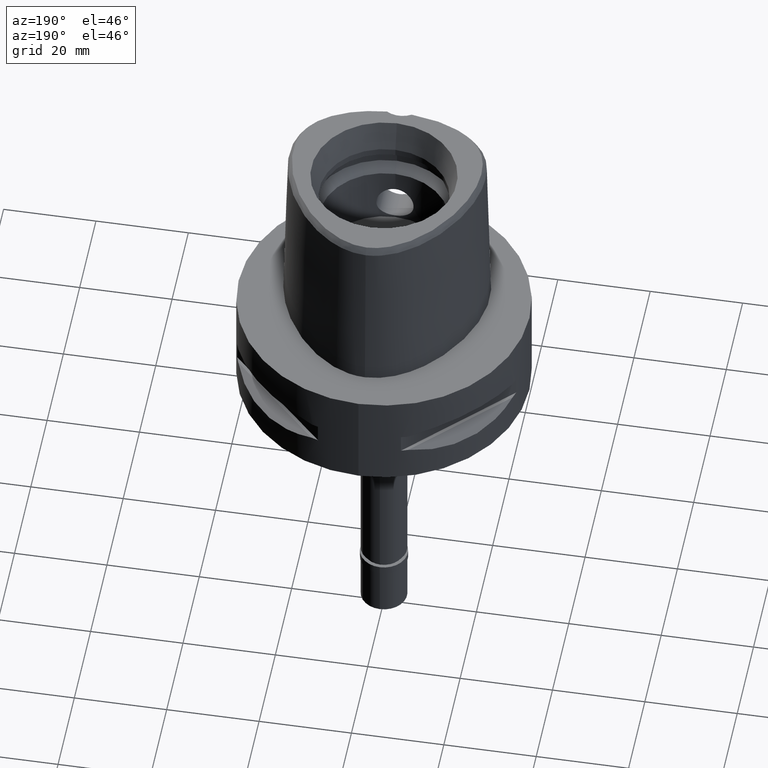
[diagram: clean part render]
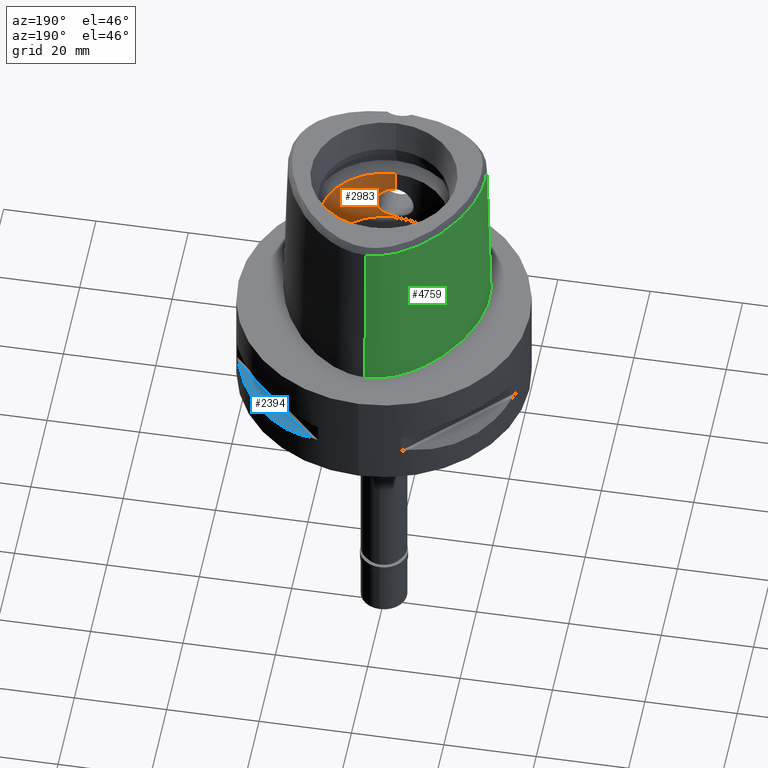
[diagram: same view with three faces highlighted in distinct colors, each labeled with its STEP entity id]
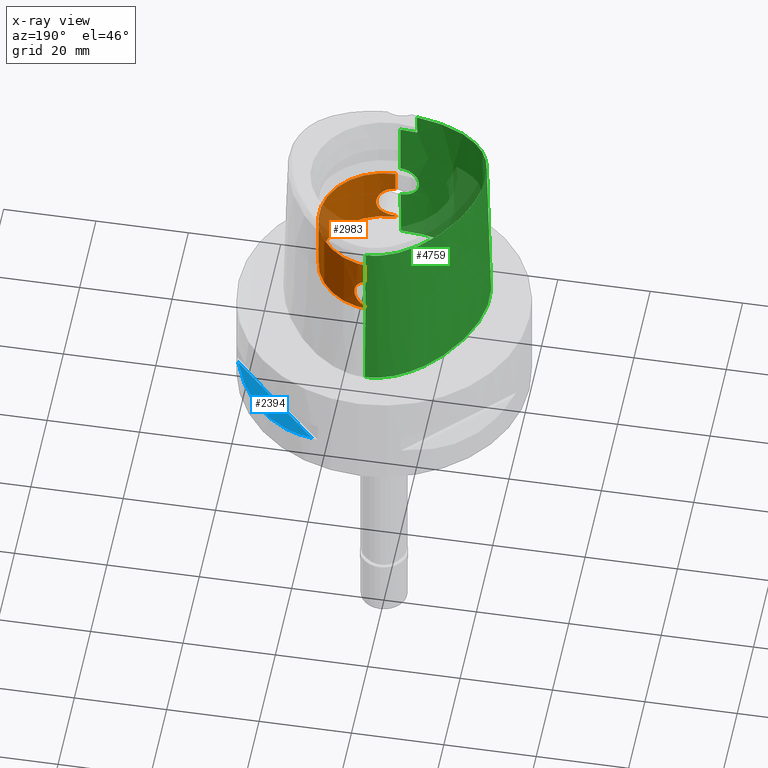
[diagram: x-ray of the same camera — body ghosted, the three highlighted faces saturated]
A machine part, auxiliary view with three faces highlighted in distinct colors.
The next image is the same camera in x-ray (body ghosted, the three faces saturated) — at least one of them is partly hidden behind the body in this view.
Their STEP definitions:

[orange] entity #2983 — the highlighted cylindrical surface (partial cylindrical patch) has radius 14 mm, axis along (0, 0, -1).
#18 = CARTESIAN_POINT ( 'NONE',  ( 3.021304941553884404, 13.67021022950744680, 18.19736346311081832 ) ) ;
#20 = CARTESIAN_POINT ( 'NONE',  ( 2.270120448918066192, -13.81470872959724083, 12.14602964351488090 ) ) ;
#77 = EDGE_CURVE ( 'NONE', #1524, #1689, #1171, .T. ) ;
#92 = CARTESIAN_POINT ( 'NONE',  ( 1.600020712553572144, 13.90819894577474969, 19.22057417718041705 ) ) ;
#153 = CARTESIAN_POINT ( 'NONE',  ( 0.0000000000000000000, 0.0000000000000000000, 39.89999999999999858 ) ) ;
#175 = CARTESIAN_POINT ( 'NONE',  ( 4.019825315748954964, -13.41085155887820868, 16.01012611084626158 ) ) ;
#176 = DIRECTION ( 'NONE',  ( 0.0000000000000000000, -1.000000000000000000, 0.0000000000000000000 ) ) ;
#185 = CARTESIAN_POINT ( 'NONE',  ( 0.0000000000000000000, 14.00000000000000000, 24.19999999999999929 ) ) ;
#198 = CARTESIAN_POINT ( 'NONE',  ( 2.195187807472813279, 13.82680933320864547, 12.09650335340150384 ) ) ;
#200 = CARTESIAN_POINT ( 'NONE',  ( 3.703565606034150193, -13.50138598731918549, 13.85673953483435383 ) ) ;
#224 = VECTOR ( 'NONE', #1868, 1000.000000000000000 ) ;
#226 = CARTESIAN_POINT ( 'NONE',  ( 1.012691655810452618, 13.96360355783274976, 11.57638180714760878 ) ) ;
#229 = CARTESIAN_POINT ( 'NONE',  ( 1.749096377726212292, -13.89074252446447133, 19.15519731928901237 ) ) ;
#247 = CARTESIAN_POINT ( 'NONE',  ( 3.244184095368607412, -13.61910079056607081, 17.92500117552527072 ) ) ;
#263 = CARTESIAN_POINT ( 'NONE',  ( 3.697550763812043506, 13.50296735333166254, 13.84703303879493852 ) ) ;
#265 = CARTESIAN_POINT ( 'NONE',  ( 2.072158934449216172, -13.84579425931552343, 18.97991914515441536 ) ) ;
#289 = CARTESIAN_POINT ( 'NONE',  ( 3.761619162813346406, 13.48521000893050648, 17.00093149717804053 ) ) ;
#291 = CARTESIAN_POINT ( 'NONE',  ( 2.750831945556846847, -13.72766448379401183, 12.52245863625261535 ) ) ;
#312 = CARTESIAN_POINT ( 'NONE',  ( 2.811771108368908756, 13.71472703503965995, 12.58511562829109387 ) ) ;
#314 = CARTESIAN_POINT ( 'NONE',  ( 2.904235088862789471, -13.69548775178366107, 12.67691408048509594 ) ) ;
#336 = CARTESIAN_POINT ( 'NONE',  ( 3.607706866536758650, 13.52734039200010763, 13.65839296866771058 ) ) ;
#368 = CARTESIAN_POINT ( 'NONE',  ( 3.922125266342297412, 13.43972325505801635, 16.51858318461486519 ) ) ;
#421 = CARTESIAN_POINT ( 'NONE',  ( 2.477062190245680640, 13.77907470895230091, 18.70486699739677761 ) ) ;
#476 = CARTESIAN_POINT ( 'NONE',  ( 2.009983675689733573, 13.85541976411150600, 19.01859212502605345 ) ) ;
#483 = CARTESIAN_POINT ( 'NONE',  ( 0.5007211163911613472, -13.99306724239822941, 19.52735035465261504 ) ) ;
#526 = CARTESIAN_POINT ( 'NONE',  ( 0.2469610740005121763, 14.00000000000000000, 11.45000000000000107 ) ) ;
#556 = CARTESIAN_POINT ( 'NONE',  ( 3.207863572185579493, -13.62777090509566591, 17.97318022903158052 ) ) ;
#576 = B_SPLINE_CURVE_WITH_KNOTS ( 'NONE', 3,
 ( #1218, #2372, #483, #3921, #2021, #3566, #1271, #2522, #1343, #2928, #4905, #4127, #229, #3684, #4078, #265, #964, #1393, #3712, #2141, #3358, #1035, #2094, #1809, #4842, #982, #4023, #931, #579, #2880, #1792, #3334, #2476, #1368, #556, #247, #603, #1442, #3289, #2906, #1772, #2572, #4405, #4474, #1747, #3640, #4103, #4451, #1006, #2547, #4431, #3314, #4883, #630, #4863, #650, #175, #1721, #2166, #1416, #3262, #2954, #3659, #2187, #4498, #3736, #4813, #2502, #4051, #2115, #200, #4172, #3835, #4951, #4251, #1055, #4984, #4527, #4222, #1517, #2978, #3484, #696, #1544, #1915, #748, #1078, #4928, #314, #291, #1856, #4199, #721, #2287, #1461, #1834, #20, #3384, #4629, #3002, #1883, #2592, #1485, #3461, #3089, #1159, #2699, #4147, #4548, #2620, #773, #3059 ),
 .UNSPECIFIED., .F., .F.,
 ( 4, 2, 2, 1, 1, 2, 2, 2, 2, 1, 1, 1, 2, 2, 2, 2, 1, 1, 2, 2, 2, 2, 1, 1, 1, 2, 2, 2, 2, 1, 1, 2, 2, 2, 2, 2, 2, 2, 1, 1, 1, 2, 2, 2, 2, 1, 1, 1, 2, 2, 2, 2, 2, 2, 2, 2, 1, 1, 1, 2, 2, 2, 2, 1, 2, 2, 4 ),
 ( 0.0000000000000000000, 0.06249999999997589428, 0.09374999999996377897, 0.1093749999999577976, 0.1171874999999547029, 0.1210937499999531625, 0.1249999999999516082, 0.1562499999999405198, 0.1718749999999352185, 0.1796874999999327760, 0.1835937499999314992, 0.1855468749999309164, 0.1865234374999306666, 0.1874999999999304445, 0.2187499999999288069, 0.2343749999999280298, 0.2421874999999276412, 0.2460937499999273637, 0.2480468749999272249, 0.2499999999999270583, 0.2812499999999217848, 0.2968749999999193978, 0.3046874999999182321, 0.3085937499999181211, 0.3105468749999175104, 0.3115234374999177880, 0.3124999999999180100, 0.3437499999999258371, 0.3593749999999300559, 0.3671874999999317768, 0.3710937499999326095, 0.3730468749999326095, 0.3749999999999326095, 0.4374999999999387157, 0.4687499999999422129, 0.4999999999999457101, 0.5624999999999527045, 0.5937499999999559241, 0.6093749999999575895, 0.6171874999999585887, 0.6210937499999590328, 0.6230468749999595879, 0.6249999999999600320, 0.6562499999999648059, 0.6718749999999672484, 0.6796874999999682476, 0.6835937499999685807, 0.6855468749999686917, 0.6865234374999690248, 0.6874999999999693578, 0.7187499999999745759, 0.7343749999999772404, 0.7421874999999785727, 0.7499999999999797939, 0.7812499999999847899, 0.7968749999999873435, 0.8046874999999885647, 0.8085937499999890088, 0.8105468749999890088, 0.8115234374999891198, 0.8124999999999891198, 0.8437499999999904521, 0.8593749999999911182, 0.8671874999999913403, 0.8710937499999915623, 0.8749999999999916733, 1.000000000000000000 ),
 .UNSPECIFIED. ) ;
#577 = CARTESIAN_POINT ( 'NONE',  ( 2.116761119947990544, 13.83907922233886190, 12.04688803764602056 ) ) ;
#579 = CARTESIAN_POINT ( 'NONE',  ( 2.789527878098103209, -13.71927654267916452, 18.43628521727639225 ) ) ;
#603 = CARTESIAN_POINT ( 'NONE',  ( 3.291368704030705139, -13.60768242115069526, 17.86010748497024281 ) ) ;
#630 = CARTESIAN_POINT ( 'NONE',  ( 3.847535471796382112, -13.46134448417898177, 16.79527699258941453 ) ) ;
#648 = CARTESIAN_POINT ( 'NONE',  ( 4.050009845354659355, 13.40151595906871762, 15.37630112484346157 ) ) ;
#650 = CARTESIAN_POINT ( 'NONE',  ( 4.001303128719568392, -13.41645961087328942, 16.14012508478695551 ) ) ;
#668 = CARTESIAN_POINT ( 'NONE',  ( 4.049980270906880619, 13.40153044022061302, 15.74836352792562444 ) ) ;
#694 = CARTESIAN_POINT ( 'NONE',  ( 3.387813153831051416, 13.58392944305446193, 17.71928877596368679 ) ) ;
#696 = CARTESIAN_POINT ( 'NONE',  ( 3.268796949737307944, -13.61345692028173104, 13.10516276210895548 ) ) ;
#710 = CARTESIAN_POINT ( 'NONE',  ( 0.0000000000000000000, -14.00000000000000000, 19.55000000000000071 ) ) ;
#714 = DIRECTION ( 'NONE',  ( 0.0000000000000000000, 0.0000000000000000000, 1.000000000000000000 ) ) ;
#719 = CARTESIAN_POINT ( 'NONE',  ( 3.953301796067399732, 13.43063179645176852, 16.38941552240736499 ) ) ;
#721 = CARTESIAN_POINT ( 'NONE',  ( 2.427453658968736327, -13.78790576228840337, 12.25758740788778312 ) ) ;
#746 = CARTESIAN_POINT ( 'NONE',  ( 3.833814256769411344, 13.46494951848879040, 16.80862529362266145 ) ) ;
#748 = CARTESIAN_POINT ( 'NONE',  ( 3.021277549193790435, -13.67021627564409059, 12.80260584679484559 ) ) ;
#767 = ORIENTED_EDGE ( 'NONE', *, *, #77, .T. ) ;
#773 = CARTESIAN_POINT ( 'NONE',  ( 0.4993348969805084803, -14.00000000000000000, 11.44999999999999751 ) ) ;
#801 = CARTESIAN_POINT ( 'NONE',  ( 0.0000000000000000000, -14.00000000000000000, 11.44999999999999929 ) ) ;
#803 = EDGE_CURVE ( 'NONE', #1524, #1409, #576, .T. ) ;
#823 = CARTESIAN_POINT ( 'NONE',  ( 1.831904944062731078, 13.87967943411387495, 19.11263484255289669 ) ) ;
#834 = CARTESIAN_POINT ( 'NONE',  ( 0.0000000000000000000, 0.0000000000000000000, 11.00000000000000000 ) ) ;
#846 = ORIENTED_EDGE ( 'NONE', *, *, #4985, .T. ) ;
#900 = LINE ( 'NONE', #1765, #2325 ) ;
#902 = DIRECTION ( 'NONE',  ( 0.0000000000000000000, 0.0000000000000000000, 1.000000000000000000 ) ) ;
#903 = VERTEX_POINT ( 'NONE', #4580 ) ;
#908 = CYLINDRICAL_SURFACE ( 'NONE', #1024, 14.00000000000000000 ) ;
#931 = CARTESIAN_POINT ( 'NONE',  ( 2.738009527657467856, -13.72967203760087251, 18.48472859250797029 ) ) ;
#961 = CARTESIAN_POINT ( 'NONE',  ( 1.634588227362874679, 13.90466521387543075, 11.79257701635417632 ) ) ;
#964 = CARTESIAN_POINT ( 'NONE',  ( 2.116794371381941264, -13.83907413047820789, 18.95309160671436999 ) ) ;
#982 = CARTESIAN_POINT ( 'NONE',  ( 2.609721733302076352, -13.75462132140074267, 18.59798744216703525 ) ) ;
#1006 = CARTESIAN_POINT ( 'NONE',  ( 3.697579400113559789, -13.50295928675319246, 17.15290291288092561 ) ) ;
#1024 = AXIS2_PLACEMENT_3D ( 'NONE', #153, #4106, #176 ) ;
#1032 = CARTESIAN_POINT ( 'NONE',  ( 3.207837342759520816, 13.62777704252605382, 13.02678573813559737 ) ) ;
#1035 = CARTESIAN_POINT ( 'NONE',  ( 2.218856396454607527, -13.82302743759880670, 18.88809469388217011 ) ) ;
#1053 = CARTESIAN_POINT ( 'NONE',  ( 3.512549281078712227, 13.55247750642533688, 13.47941624305511432 ) ) ;
#1055 = CARTESIAN_POINT ( 'NONE',  ( 3.445937253020460833, -13.56935639620131617, 13.37156319181069541 ) ) ;
#1075 = CARTESIAN_POINT ( 'NONE',  ( 3.473315698802779128, 13.56238034875359588, 17.58321576396974351 ) ) ;
#1078 = CARTESIAN_POINT ( 'NONE',  ( 2.993883888055604015, -13.67622319316857649, 12.77218746223293699 ) ) ;
#1105 = CARTESIAN_POINT ( 'NONE',  ( 3.728058664889760898, 13.49453883941406396, 13.91755370156625204 ) ) ;
#1133 = CARTESIAN_POINT ( 'NONE',  ( 2.694727720267104054, 13.73817862544391133, 12.47636628649186896 ) ) ;
#1159 = CARTESIAN_POINT ( 'NONE',  ( 1.642804261143480327, -13.90325697920963144, 11.79791963565494939 ) ) ;
#1171 = LINE ( 'NONE', #710, #224 ) ;
#1213 = CARTESIAN_POINT ( 'NONE',  ( 1.773121091246069314, 13.88730563408852348, 19.14179163017760743 ) ) ;
#1218 = CARTESIAN_POINT ( 'NONE',  ( 0.0000000000000000000, -14.00000000000000000, 19.55000000000000071 ) ) ;
#1234 = CARTESIAN_POINT ( 'NONE',  ( 0.0000000000000000000, 14.00000000000000000, 19.55000000000000071 ) ) ;
#1260 = CARTESIAN_POINT ( 'NONE',  ( 0.4993348482409940003, 14.00000000000000178, 19.55000000000000071 ) ) ;
#1271 = CARTESIAN_POINT ( 'NONE',  ( 1.300832332018194260, -13.93955501965955257, 19.33644964511242392 ) ) ;
#1312 = CARTESIAN_POINT ( 'NONE',  ( 0.8843411482173316740, 13.97226937739639041, 11.54558681765484351 ) ) ;
#1320 = EDGE_CURVE ( 'NONE', #3207, #2693, #4408, .T. ) ;
#1334 = AXIS2_PLACEMENT_3D ( 'NONE', #3967, #902, #4763 ) ;
#1343 = CARTESIAN_POINT ( 'NONE',  ( 1.460074279767865413, -13.92360426095860504, 19.27769426234243966 ) ) ;
#1366 = CARTESIAN_POINT ( 'NONE',  ( 2.213892629975331428, 13.82382370962135631, 12.10865817737101935 ) ) ;
#1368 = CARTESIAN_POINT ( 'NONE',  ( 3.082234430489703136, -13.65695485344250848, 18.13065913558094522 ) ) ;
#1393 = CARTESIAN_POINT ( 'NONE',  ( 2.169055375737873881, -13.83094235749872070, 18.92027035189183692 ) ) ;
#1395 = FACE_OUTER_BOUND ( 'NONE', #3824, .T. ) ;
#1409 = VERTEX_POINT ( 'NONE', #801 ) ;
#1413 = CARTESIAN_POINT ( 'NONE',  ( 0.5007188167380479671, 13.99306734434909316, 11.47264948146968244 ) ) ;
#1416 = CARTESIAN_POINT ( 'NONE',  ( 4.049968290187051956, -13.40153417708412853, 15.25145732254571129 ) ) ;
#1431 = CIRCLE ( 'NONE', #3224, 14.00000000000000000 ) ;
#1439 = CARTESIAN_POINT ( 'NONE',  ( 3.719102239749715988, 13.49701949289162961, 13.89650769392831897 ) ) ;
#1442 = CARTESIAN_POINT ( 'NONE',  ( 3.313134370174739995, -13.60236993703776953, 17.82949986179693980 ) ) ;
#1459 = CARTESIAN_POINT ( 'NONE',  ( 3.703599654838359623, 13.50137647745706460, 17.14318396462188332 ) ) ;
#1461 = CARTESIAN_POINT ( 'NONE',  ( 2.324611523251419509, -13.80564399077224280, 12.18339697058251403 ) ) ;
#1483 = CARTESIAN_POINT ( 'NONE',  ( 3.736419835728702399, 13.49221986902157866, 13.93739201233683822 ) ) ;
#1485 = CARTESIAN_POINT ( 'NONE',  ( 1.831892396683518331, -13.87968110461196147, 11.88735883608105226 ) ) ;
#1514 = CARTESIAN_POINT ( 'NONE',  ( 2.976267449548276378, 13.68064960893301496, 12.74681365168925318 ) ) ;
#1517 = CARTESIAN_POINT ( 'NONE',  ( 3.382795995940714118, -13.58517774294473490, 13.27307119914202538 ) ) ;
#1524 = VERTEX_POINT ( 'NONE', #4009 ) ;
#1541 = CARTESIAN_POINT ( 'NONE',  ( 2.554925136577320011, 13.76486334965946945, 12.35686711568972740 ) ) ;
#1544 = CARTESIAN_POINT ( 'NONE',  ( 3.145348834123961712, -13.64233170434634523, 12.94779988337015020 ) ) ;
#1552 = EDGE_CURVE ( 'NONE', #2693, #4464, #900, .T. ) ;
#1595 = CARTESIAN_POINT ( 'NONE',  ( 2.904269286161959673, 13.69548049539751311, 18.32305077559801632 ) ) ;
#1604 = ORIENTED_EDGE ( 'NONE', *, *, #1913, .T. ) ;
#1622 = CARTESIAN_POINT ( 'NONE',  ( 2.634396152559171700, 13.75016644200633920, 18.57904127493807778 ) ) ;
#1689 = VERTEX_POINT ( 'NONE', #4185 ) ;
#1704 = LINE ( 'NONE', #4316, #4495 ) ;
#1719 = CARTESIAN_POINT ( 'NONE',  ( 1.509661710687266067, 13.91832599697836059, 11.74185604926005766 ) ) ;
#1721 = CARTESIAN_POINT ( 'NONE',  ( 4.044181218437979730, -13.40337870229478057, 15.75263113532740533 ) ) ;
#1747 = CARTESIAN_POINT ( 'NONE',  ( 3.512580812224686877, -13.55246913600061376, 17.52052912539848251 ) ) ;
#1765 = CARTESIAN_POINT ( 'NONE',  ( 0.0000000000000000000, 14.00000000000000000, 19.55000000000000071 ) ) ;
#1770 = CARTESIAN_POINT ( 'NONE',  ( 1.300823878609167483, 13.93955590854367443, 11.66354750902358184 ) ) ;
#1772 = CARTESIAN_POINT ( 'NONE',  ( 3.350328420533037033, -13.59322019914866786, 17.77547927694903862 ) ) ;
#1792 = CARTESIAN_POINT ( 'NONE',  ( 2.826712337951755138, -13.71165699807038685, 18.40039739276651432 ) ) ;
#1807 = CARTESIAN_POINT ( 'NONE',  ( 2.609686539125627647, 13.75462803947173640, 12.40198298150863288 ) ) ;
#1809 = CARTESIAN_POINT ( 'NONE',  ( 2.398023482402635409, -13.79337071568607875, 18.76644932495369034 ) ) ;
#1831 = CARTESIAN_POINT ( 'NONE',  ( 3.313106551887153195, 13.60237669239572256, 13.17046060146248365 ) ) ;
#1834 = CARTESIAN_POINT ( 'NONE',  ( 2.287890597980450913, -13.81177560248021230, 12.15809561415601792 ) ) ;
#1854 = CARTESIAN_POINT ( 'NONE',  ( 3.350298277090262289, 13.59322763719115379, 13.22447634191758681 ) ) ;
#1856 = CARTESIAN_POINT ( 'NONE',  ( 2.634372541811827784, -13.75017103543459207, 12.42093864153611449 ) ) ;
#1868 = DIRECTION ( 'NONE',  ( 0.0000000000000000000, 0.0000000000000000000, 1.000000000000000000 ) ) ;
#1881 = CARTESIAN_POINT ( 'NONE',  ( 2.826670162039208734, 13.71166566848403789, 12.59956150533609964 ) ) ;
#1883 = CARTESIAN_POINT ( 'NONE',  ( 2.131008348711046274, -13.83740853935630533, 12.05286146753050147 ) ) ;
#1912 = CARTESIAN_POINT ( 'NONE',  ( 4.027111865107016797, 13.40880939956637974, 16.00347817735212175 ) ) ;
#1913 = EDGE_CURVE ( 'NONE', #903, #1409, #1704, .T. ) ;
#1915 = CARTESIAN_POINT ( 'NONE',  ( 3.099158303631189160, -13.65291219517886212, 12.89156545087576866 ) ) ;
#1938 = CARTESIAN_POINT ( 'NONE',  ( 2.936080079916211449, 13.68870831212606376, 18.28993470436033775 ) ) ;
#1997 = EDGE_CURVE ( 'NONE', #3329, #903, #1431, .T. ) ;
#2014 = CARTESIAN_POINT ( 'NONE',  ( 2.256578879066081900, 13.81692875816313482, 18.86308975819263267 ) ) ;
#2021 = CARTESIAN_POINT ( 'NONE',  ( 1.012697663246837410, -13.96360302259069996, 19.42361668286727650 ) ) ;
#2052 = CARTESIAN_POINT ( 'NONE',  ( 0.0000000000000000000, 14.00000000000000000, 19.55000000000000071 ) ) ;
#2087 = ORIENTED_EDGE ( 'NONE', *, *, #1552, .F. ) ;
#2094 = CARTESIAN_POINT ( 'NONE',  ( 2.303287437600388898, -13.80945558724853583, 18.83270978139855956 ) ) ;
#2115 = CARTESIAN_POINT ( 'NONE',  ( 3.751494170827402108, -13.48803422950952502, 13.97394398290214212 ) ) ;
#2141 = CARTESIAN_POINT ( 'NONE',  ( 2.206446456109741661, -13.82501417463133819, 18.89619109784517192 ) ) ;
#2166 = CARTESIAN_POINT ( 'NONE',  ( 4.050015805360771104, -13.40151398669011229, 15.62349546484439067 ) ) ;
#2185 = CARTESIAN_POINT ( 'NONE',  ( 3.864980205616510567, 13.45608643243408586, 16.71200147995280716 ) ) ;
#2187 = CARTESIAN_POINT ( 'NONE',  ( 3.864946774206843294, -13.45609599596305550, 14.28789217830755653 ) ) ;
#2207 = CARTESIAN_POINT ( 'NONE',  ( 2.833217784024010921, 13.71031506471585715, 12.60595154616705038 ) ) ;
#2234 = CARTESIAN_POINT ( 'NONE',  ( 4.019804936473691193, 13.41085772739984705, 14.98971569532666237 ) ) ;
#2257 = CARTESIAN_POINT ( 'NONE',  ( 3.268821255500567791, 13.61345113360260228, 17.89480413174046802 ) ) ;
#2285 = CARTESIAN_POINT ( 'NONE',  ( 3.099183676218102423, 13.65290644980575330, 18.10840436838225642 ) ) ;
#2287 = CARTESIAN_POINT ( 'NONE',  ( 2.358062464161041927, -13.79993342506728204, 12.20715030921591016 ) ) ;
#2317 = CARTESIAN_POINT ( 'NONE',  ( 2.427474835699610534, 13.78790197320643784, 18.74239673142709250 ) ) ;
#2325 = VECTOR ( 'NONE', #4396, 1000.000000000000000 ) ;
#2372 = CARTESIAN_POINT ( 'NONE',  ( 0.2469619712139849155, -14.00000000000000000, 19.54999999999999005 ) ) ;
#2419 = CARTESIAN_POINT ( 'NONE',  ( 1.686061912191655798, 13.89805439901129702, 19.18248847910213684 ) ) ;
#2476 = CARTESIAN_POINT ( 'NONE',  ( 2.976300989548096521, -13.68064229201780080, 18.25314939158814553 ) ) ;
#2500 = CARTESIAN_POINT ( 'NONE',  ( 1.749077319132318564, 13.89074492455182508, 11.84479375991128514 ) ) ;
#2502 = CARTESIAN_POINT ( 'NONE',  ( 3.761585992301341275, -13.48521934412418233, 13.99898537745364280 ) ) ;
#2522 = CARTESIAN_POINT ( 'NONE',  ( 1.412385628672193860, -13.92856009940049766, 19.29601003413162630 ) ) ;
#2547 = CARTESIAN_POINT ( 'NONE',  ( 3.719130217002550420, -13.49701159620070712, 17.10342741686534751 ) ) ;
#2570 = CARTESIAN_POINT ( 'NONE',  ( 4.044169806559334113, 13.40338230610138481, 15.24719103139314846 ) ) ;
#2572 = CARTESIAN_POINT ( 'NONE',  ( 3.353182978759734478, -13.59251660623577784, 17.77127065234680714 ) ) ;
#2590 = CARTESIAN_POINT ( 'NONE',  ( 3.733968198177182618, 13.49290027699973216, 13.93154879218773878 ) ) ;
#2592 = CARTESIAN_POINT ( 'NONE',  ( 2.009965628656266823, -13.85542235634521901, 11.98139773479658743 ) ) ;
#2617 = CARTESIAN_POINT ( 'NONE',  ( 3.526217778914912504, 13.54879147628819425, 17.49327058546295888 ) ) ;
#2620 = CARTESIAN_POINT ( 'NONE',  ( 1.029067098793631674, -13.97152946576330557, 11.54362188853278681 ) ) ;
#2646 = CARTESIAN_POINT ( 'NONE',  ( 3.379269927644354521, 13.58605386778952351, 17.73227278063701817 ) ) ;
#2672 = CARTESIAN_POINT ( 'NONE',  ( 3.677929961663338077, 13.50833923769577360, 13.80401849106410950 ) ) ;
#2691 = CARTESIAN_POINT ( 'NONE',  ( 0.0000000000000000000, 14.00000000000000000, 11.00000000000000000 ) ) ;
#2693 = VERTEX_POINT ( 'NONE', #2052 ) ;
#2699 = CARTESIAN_POINT ( 'NONE',  ( 1.600015351183183165, -13.90819961303205510, 11.77942351919934616 ) ) ;
#2751 = CARTESIAN_POINT ( 'NONE',  ( 2.257694449156244509, 13.81674599889762867, 18.86233917348070221 ) ) ;
#2771 = ORIENTED_EDGE ( 'NONE', *, *, #1997, .T. ) ;
#2774 = CARTESIAN_POINT ( 'NONE',  ( 2.358084420514530155, 13.79992963249587845, 18.79283396578201248 ) ) ;
#2794 = ORIENTED_EDGE ( 'NONE', *, *, #803, .F. ) ;
#2814 = DIRECTION ( 'NONE',  ( 0.0000000000000000000, 0.0000000000000000000, 1.000000000000000000 ) ) ;
#2853 = CARTESIAN_POINT ( 'NONE',  ( 1.204843418266228650, 13.94800508261821470, 11.63279062297913313 ) ) ;
#2880 = CARTESIAN_POINT ( 'NONE',  ( 2.811812717195608879, -13.71471852352048515, 18.41484423613210097 ) ) ;
#2906 = CARTESIAN_POINT ( 'NONE',  ( 3.345995707867777558, -13.59428798541158656, 17.78185442304576824 ) ) ;
#2926 = CARTESIAN_POINT ( 'NONE',  ( 2.072127397193907150, 13.84579898762481065, 12.02006209058586172 ) ) ;
#2928 = CARTESIAN_POINT ( 'NONE',  ( 1.491836830997358865, -13.92024620649523925, 19.26526409589743949 ) ) ;
#2937 = VECTOR ( 'NONE', #714, 1000.000000000000000 ) ;
#2951 = CARTESIAN_POINT ( 'NONE',  ( 1.983146039202662303, 13.85890526113235133, 11.96809527287161856 ) ) ;
#2954 = CARTESIAN_POINT ( 'NONE',  ( 3.953271868619217866, -13.43064054395089713, 14.61045279452433476 ) ) ;
#2976 = CARTESIAN_POINT ( 'NONE',  ( 2.303254044014487967, 13.80946120812081723, 12.16726702600982435 ) ) ;
#2978 = CARTESIAN_POINT ( 'NONE',  ( 3.379239915581707887, -13.58606129462866008, 13.26768178733106041 ) ) ;
#2983 = ADVANCED_FACE ( 'NONE', ( #1395 ), #908, .F. ) ;
#2991 = ORIENTED_EDGE ( 'NONE', *, *, #1320, .F. ) ;
#3000 = CARTESIAN_POINT ( 'NONE',  ( 3.291341603183991271, 13.60768894908129134, 13.13985473171818263 ) ) ;
#3002 = CARTESIAN_POINT ( 'NONE',  ( 2.256553425648246680, -13.81693293125004551, 12.13689316333013402 ) ) ;
#3023 = CARTESIAN_POINT ( 'NONE',  ( 3.395263942576164151, 13.58207358849636393, 17.70790092792949366 ) ) ;
#3056 = CARTESIAN_POINT ( 'NONE',  ( 3.331061021268091338, 13.59802296600191518, 17.80514897398522578 ) ) ;
#3059 = CARTESIAN_POINT ( 'NONE',  ( 0.0000000000000000000, -14.00000000000000000, 11.44999999999999929 ) ) ;
#3089 = CARTESIAN_POINT ( 'NONE',  ( 1.686053887937513318, -13.89805541002315259, 11.81750785588420527 ) ) ;
#3107 = CARTESIAN_POINT ( 'NONE',  ( 2.262657504725199331, 13.81593326225243423, 18.85900133366817499 ) ) ;
#3164 = CARTESIAN_POINT ( 'NONE',  ( 2.287914411594898390, 13.81177163540706587, 18.84188808002111770 ) ) ;
#3207 = VERTEX_POINT ( 'NONE', #3811 ) ;
#3224 = AXIS2_PLACEMENT_3D ( 'NONE', #834, #4385, #4793 ) ;
#3251 = ORIENTED_EDGE ( 'NONE', *, *, #4006, .F. ) ;
#3262 = CARTESIAN_POINT ( 'NONE',  ( 4.027090571201871860, -13.40881581639932207, 14.99636091962641515 ) ) ;
#3287 = CARTESIAN_POINT ( 'NONE',  ( 2.206409793406630016, 13.82502004191293032, 12.10378508357747229 ) ) ;
#3289 = CARTESIAN_POINT ( 'NONE',  ( 3.335527327673413200, -13.59686626494684525, 17.79716334894404994 ) ) ;
#3314 = CARTESIAN_POINT ( 'NONE',  ( 3.733995678949888042, -13.49289251839278414, 17.06838578377332283 ) ) ;
#3329 = VERTEX_POINT ( 'NONE', #3407 ) ;
#3334 = CARTESIAN_POINT ( 'NONE',  ( 2.833261118042548432, -13.71030613557795519, 18.39400602743046420 ) ) ;
#3355 = CARTESIAN_POINT ( 'NONE',  ( 2.397991174048930141, 13.79337638273023003, 12.23352706165006332 ) ) ;
#3358 = CARTESIAN_POINT ( 'NONE',  ( 2.213929575852168874, -13.82381777579268878, 18.89131770406859090 ) ) ;
#3382 = CARTESIAN_POINT ( 'NONE',  ( 3.755205489370120553, 13.48699954289935121, 17.01690666089586657 ) ) ;
#3384 = CARTESIAN_POINT ( 'NONE',  ( 2.262632630983038684, -13.81593735291804670, 12.14098191114988090 ) ) ;
#3404 = CARTESIAN_POINT ( 'NONE',  ( 2.789487104691048547, 13.71928482084976508, 12.56367606040438822 ) ) ;
#3407 = CARTESIAN_POINT ( 'NONE',  ( 0.0000000000000000000, 14.00000000000000000, 11.00000000000000000 ) ) ;
#3431 = CARTESIAN_POINT ( 'NONE',  ( 3.082205682133910774, 13.65696130646674611, 12.86930713617320343 ) ) ;
#3459 = CARTESIAN_POINT ( 'NONE',  ( 3.771155689731656491, 13.48254700476995183, 16.97695699538702385 ) ) ;
#3461 = CARTESIAN_POINT ( 'NONE',  ( 1.773110367962991818, -13.88730702449809939, 11.85820318509704485 ) ) ;
#3484 = CARTESIAN_POINT ( 'NONE',  ( 3.331034779819236569, -13.59802931548254890, 13.19481341277083786 ) ) ;
#3508 = CARTESIAN_POINT ( 'NONE',  ( 2.324634123219893489, 13.80564015286764601, 18.81658718006040587 ) ) ;
#3510 = CIRCLE ( 'NONE', #1334, 14.00000000000000000 ) ;
#3539 = CARTESIAN_POINT ( 'NONE',  ( 1.559414280564237698, 13.91280851916119587, 19.23778400387013932 ) ) ;
#3560 = CARTESIAN_POINT ( 'NONE',  ( 2.750859513684491553, 13.72765896513096884, 18.47751645274109222 ) ) ;
#3566 = CARTESIAN_POINT ( 'NONE',  ( 1.204851037999931096, -13.94800431798671347, 19.36720701334121486 ) ) ;
#3640 = CARTESIAN_POINT ( 'NONE',  ( 3.607737414298956669, -13.52733198974719464, 17.34154723716651603 ) ) ;
#3657 = CARTESIAN_POINT ( 'NONE',  ( 2.169020131539913798, 13.83094789624060184, 12.07970730450768215 ) ) ;
#3659 = CARTESIAN_POINT ( 'NONE',  ( 3.922093348358058229, -13.43973249789788404, 14.48129517415247314 ) ) ;
#3682 = CARTESIAN_POINT ( 'NONE',  ( 0.0000000000000000000, 14.00000000000000000, 11.44999999999999929 ) ) ;
#3684 = CARTESIAN_POINT ( 'NONE',  ( 1.924233758853832743, -13.86719483962139066, 19.06428826509100460 ) ) ;
#3712 = CARTESIAN_POINT ( 'NONE',  ( 2.195224045146164205, -13.82680356534165433, 18.90347327557520885 ) ) ;
#3733 = CARTESIAN_POINT ( 'NONE',  ( 3.345965900052037423, 13.59429532639197191, 13.21810187084912158 ) ) ;
#3736 = CARTESIAN_POINT ( 'NONE',  ( 3.792787276687726195, -13.47649190336284697, 14.07897179740762716 ) ) ;
#3755 = CARTESIAN_POINT ( 'NONE',  ( 3.925349283190411764, 13.43890767306840850, 14.46807490739691104 ) ) ;
#3783 = CARTESIAN_POINT ( 'NONE',  ( 3.792820881330128291, 13.47648240594429403, 16.92093861112928366 ) ) ;
#3808 = CARTESIAN_POINT ( 'NONE',  ( 2.218819047830493663, 13.82303345025275298, 12.11188084676368781 ) ) ;
#3811 = CARTESIAN_POINT ( 'NONE',  ( 0.0000000000000000000, 14.00000000000000000, 11.44999999999999929 ) ) ;
#3824 = EDGE_LOOP ( 'NONE', ( #3251, #2771, #1604, #2794, #767, #846, #2087, #2991 ) ) ;
#3835 = CARTESIAN_POINT ( 'NONE',  ( 3.559063478151824444, -13.54020394576474828, 13.56610376615841496 ) ) ;
#3837 = CARTESIAN_POINT ( 'NONE',  ( 3.847503257113026542, 13.46135349787731528, 14.20463267426451281 ) ) ;
#3867 = CARTESIAN_POINT ( 'NONE',  ( 1.029068462701922648, 13.97152931237916640, 19.45637812987303406 ) ) ;
#3921 = CARTESIAN_POINT ( 'NONE',  ( 0.8843461547086383101, -13.97226896959291409, 19.45441209379247738 ) ) ;
#3967 = CARTESIAN_POINT ( 'NONE',  ( 0.0000000000000000000, 0.0000000000000000000, 24.19999999999999929 ) ) ;
#4006 = EDGE_CURVE ( 'NONE', #3329, #3207, #4193, .T. ) ;
#4009 = CARTESIAN_POINT ( 'NONE',  ( 0.0000000000000000000, -14.00000000000000000, 19.55000000000000071 ) ) ;
#4018 = CARTESIAN_POINT ( 'NONE',  ( 1.491826632193641755, 13.92024737932845646, 11.73473186404370239 ) ) ;
#4023 = CARTESIAN_POINT ( 'NONE',  ( 2.694765297609574617, -13.73817123362194970, 18.52360024144605788 ) ) ;
#4048 = CARTESIAN_POINT ( 'NONE',  ( 1.924207930542823464, 13.86719843405157526, 11.93569784228276376 ) ) ;
#4051 = CARTESIAN_POINT ( 'NONE',  ( 3.755172431051039261, -13.48700883882929524, 13.98301150708059382 ) ) ;
#4078 = CARTESIAN_POINT ( 'NONE',  ( 1.983174149690708044, -13.85890123393953566, 19.03188900133035588 ) ) ;
#4103 = CARTESIAN_POINT ( 'NONE',  ( 3.637111655380687480, -13.51943961426366236, 17.28269662178848876 ) ) ;
#4106 = DIRECTION ( 'NONE',  ( 0.0000000000000000000, 0.0000000000000000000, -1.000000000000000000 ) ) ;
#4124 = CARTESIAN_POINT ( 'NONE',  ( 3.439724800737381294, 13.57118202375883698, 13.35682807297289365 ) ) ;
#4127 = CARTESIAN_POINT ( 'NONE',  ( 1.634602878328413889, -13.90466347142324999, 19.20741667344097436 ) ) ;
#4145 = CARTESIAN_POINT ( 'NONE',  ( 3.335498251822821558, 13.59687339285075325, 13.20279444042381556 ) ) ;
#4147 = CARTESIAN_POINT ( 'NONE',  ( 1.571596238175356541, -13.91143716105499628, 11.76733021315012628 ) ) ;
#4169 = CARTESIAN_POINT ( 'NONE',  ( 3.445969137113380043, 13.56934829726205649, 17.62838523924338219 ) ) ;
#4172 = CARTESIAN_POINT ( 'NONE',  ( 3.651069946849426096, -13.51580286203986780, 13.74223488988537945 ) ) ;
#4185 = CARTESIAN_POINT ( 'NONE',  ( 0.0000000000000000000, -14.00000000000000000, 24.19999999999999929 ) ) ;
#4193 = LINE ( 'NONE', #2691, #2937 ) ;
#4197 = CARTESIAN_POINT ( 'NONE',  ( 3.244157921758630714, 13.61910698617228022, 13.07496385106077419 ) ) ;
#4199 = CARTESIAN_POINT ( 'NONE',  ( 2.477040854372866363, -13.77907861194390016, 12.29511654028931567 ) ) ;
#4220 = CARTESIAN_POINT ( 'NONE',  ( 3.637081595943957080, 13.51944796412087157, 13.71724208299076686 ) ) ;
#4222 = CARTESIAN_POINT ( 'NONE',  ( 3.387782939651612590, -13.58393694539119601, 13.28066510232260633 ) ) ;
#4251 = CARTESIAN_POINT ( 'NONE',  ( 3.473283187008859851, -13.56238869663138757, 13.41673005787327355 ) ) ;
#4280 = CARTESIAN_POINT ( 'NONE',  ( 1.642810945102976206, 13.90325614771287199, 19.20207741289164360 ) ) ;
#4316 = CARTESIAN_POINT ( 'NONE',  ( 0.0000000000000000000, -14.00000000000000000, 11.00000000000000000 ) ) ;
#4330 = CARTESIAN_POINT ( 'NONE',  ( 2.131030101384234321, 13.83740522400538708, 18.94712529984904137 ) ) ;
#4355 = CARTESIAN_POINT ( 'NONE',  ( 2.993912119599051014, 13.67621701665806100, 18.22778153641248622 ) ) ;
#4385 = DIRECTION ( 'NONE',  ( 0.0000000000000000000, 0.0000000000000000000, -1.000000000000000000 ) ) ;
#4396 = DIRECTION ( 'NONE',  ( 0.0000000000000000000, 0.0000000000000000000, 1.000000000000000000 ) ) ;
#4402 = CARTESIAN_POINT ( 'NONE',  ( 1.460064375717071927, 13.92360538440936679, 11.72230191056353554 ) ) ;
#4405 = CARTESIAN_POINT ( 'NONE',  ( 3.353368985070069197, -13.59247076908031993, 17.77099940975775993 ) ) ;
#4408 = B_SPLINE_CURVE_WITH_KNOTS ( 'NONE', 3,
 ( #3682, #526, #1413, #1312, #226, #2853, #1770, #4860, #4402, #4018, #1719, #961, #2500, #4048, #2951, #2926, #577, #3657, #198, #3287, #1366, #3808, #2976, #3355, #1541, #1807, #1133, #4903, #3404, #312, #1881, #2207, #1514, #3431, #1032, #4197, #3000, #1831, #4145, #3733, #1854, #4496, #4525, #4124, #1053, #336, #4220, #2672, #263, #1439, #1105, #2590, #1483, #3837, #3755, #4982, #2234, #2570, #648, #668, #1912, #719, #368, #2185, #746, #3783, #3459, #289, #3382, #4926, #1459, #4546, #4824, #2617, #1075, #4169, #4949, #3023, #694, #4576, #2646, #3056, #2257, #4604, #2285, #18, #4355, #1938, #1595, #3560, #1622, #421, #2317, #2774, #3508, #3164, #4709, #3107, #2751, #2014, #4330, #476, #823, #1213, #2419, #4280, #92, #4654, #3539, #3867, #1260, #1234 ),
 .UNSPECIFIED., .F., .F.,
 ( 4, 2, 2, 1, 1, 2, 2, 2, 2, 1, 1, 1, 2, 2, 2, 2, 1, 1, 2, 2, 2, 2, 1, 1, 1, 2, 2, 2, 2, 1, 1, 2, 2, 2, 2, 2, 2, 2, 1, 1, 1, 2, 2, 2, 2, 1, 1, 1, 2, 2, 2, 2, 2, 2, 2, 2, 1, 1, 1, 2, 2, 2, 2, 1, 2, 2, 4 ),
 ( 0.0000000000000000000, 0.06249999999999665545, 0.09374999999999494849, 0.1093749999999941019, 0.1171874999999936440, 0.1210937499999934358, 0.1249999999999932276, 0.1562499999999912292, 0.1718749999999901745, 0.1796874999999895639, 0.1835937499999892031, 0.1855468749999890365, 0.1865234374999890365, 0.1874999999999890643, 0.2187499999999850953, 0.2343749999999831801, 0.2421874999999822364, 0.2460937499999819034, 0.2480468749999816258, 0.2499999999999813483, 0.2812499999999760192, 0.2968749999999733546, 0.3046874999999719669, 0.3085937499999711342, 0.3105468749999706346, 0.3115234374999703570, 0.3124999999999700795, 0.3437499999999659717, 0.3593749999999640843, 0.3671874999999629186, 0.3710937499999623079, 0.3730468749999617528, 0.3749999999999612532, 0.4374999999999524269, 0.4687499999999482636, 0.4999999999999441003, 0.5624999999999352740, 0.5937499999999308331, 0.6093749999999289457, 0.6171874999999281686, 0.6210937499999280575, 0.6230468749999276135, 0.6249999999999271694, 0.6562499999999225064, 0.6718749999999200639, 0.6796874999999191758, 0.6835937499999191758, 0.6855468749999191758, 0.6865234374999191758, 0.6874999999999192868, 0.7187499999999262812, 0.7343749999999297229, 0.7421874999999314992, 0.7499999999999333866, 0.7812499999999394928, 0.7968749999999423794, 0.8046874999999436007, 0.8085937499999444888, 0.8105468749999445999, 0.8115234374999449329, 0.8124999999999451550, 0.8437499999999530376, 0.8593749999999570344, 0.8671874999999589217, 0.8710937499999598099, 0.8749999999999606981, 1.000000000000000000 ),
 .UNSPECIFIED. ) ;
#4431 = CARTESIAN_POINT ( 'NONE',  ( 3.728086346000441864, -13.49453102439218277, 17.08238108365962304 ) ) ;
#4451 = CARTESIAN_POINT ( 'NONE',  ( 3.677959103261758678, -13.50833106093977953, 17.19591831893358247 ) ) ;
#4464 = VERTEX_POINT ( 'NONE', #185 ) ;
#4474 = CARTESIAN_POINT ( 'NONE',  ( 3.439756345638308677, -13.57117392657332466, 17.64312162329362010 ) ) ;
#4495 = VECTOR ( 'NONE', #2814, 1000.000000000000000 ) ;
#4496 = CARTESIAN_POINT ( 'NONE',  ( 3.353152606710339878, 13.59252411026268881, 13.22868450890713632 ) ) ;
#4498 = CARTESIAN_POINT ( 'NONE',  ( 3.833780436349445431, -13.46495913678181999, 14.19127607295814997 ) ) ;
#4525 = CARTESIAN_POINT ( 'NONE',  ( 3.353338406419834161, 13.59247832459182703, 13.22895543861059053 ) ) ;
#4527 = CARTESIAN_POINT ( 'NONE',  ( 3.395233497552913704, -13.58208117048989116, 13.29205225842294524 ) ) ;
#4546 = CARTESIAN_POINT ( 'NONE',  ( 3.651104523684221448, 13.51579337886135335, 17.25769370076417175 ) ) ;
#4548 = CARTESIAN_POINT ( 'NONE',  ( 1.559410596998348941, -13.91280898890011741, 11.76221445972340263 ) ) ;
#4576 = CARTESIAN_POINT ( 'NONE',  ( 3.382826053774057318, 13.58517029426559297, 17.72688314158971679 ) ) ;
#4580 = CARTESIAN_POINT ( 'NONE',  ( 0.0000000000000000000, -14.00000000000000000, 11.00000000000000000 ) ) ;
#4604 = CARTESIAN_POINT ( 'NONE',  ( 3.145373522280978218, 13.64232603900482133, 18.05216970689394884 ) ) ;
#4629 = CARTESIAN_POINT ( 'NONE',  ( 2.257669345894968593, -13.81675011709682188, 12.13764397057394540 ) ) ;
#4654 = CARTESIAN_POINT ( 'NONE',  ( 1.571600722150411578, 13.91143659989607606, 19.23266790093071066 ) ) ;
#4709 = CARTESIAN_POINT ( 'NONE',  ( 2.270144986865775927, 13.81470467886986775, 18.85395374720694051 ) ) ;
#4763 = DIRECTION ( 'NONE',  ( 0.0000000000000000000, -1.000000000000000000, 0.0000000000000000000 ) ) ;
#4793 = DIRECTION ( 'NONE',  ( 0.0000000000000000000, 1.000000000000000000, 0.0000000000000000000 ) ) ;
#4813 = CARTESIAN_POINT ( 'NONE',  ( 3.771122363236426800, -13.48255639555980956, 14.02295793919941858 ) ) ;
#4824 = CARTESIAN_POINT ( 'NONE',  ( 3.559097466733200488, 13.54019492737996977, 17.43383377502738796 ) ) ;
#4842 = CARTESIAN_POINT ( 'NONE',  ( 2.554959192018730896, -13.76485697423544075, 18.64310522903389256 ) ) ;
#4860 = CARTESIAN_POINT ( 'NONE',  ( 1.412376164654970179, 13.92856114997231209, 11.70398645001274929 ) ) ;
#4863 = CARTESIAN_POINT ( 'NONE',  ( 3.925380807800868954, -13.43889863796862194, 16.53181050685028453 ) ) ;
#4883 = CARTESIAN_POINT ( 'NONE',  ( 3.736446957535184410, -13.49221221085979572, 17.06254313828730673 ) ) ;
#4903 = CARTESIAN_POINT ( 'NONE',  ( 2.737970590739037924, 13.72967980624344264, 12.51523573373417619 ) ) ;
#4905 = CARTESIAN_POINT ( 'NONE',  ( 1.509671686845905691, -13.91832483844817503, 19.25813994556366637 ) ) ;
#4926 = CARTESIAN_POINT ( 'NONE',  ( 3.751527034944411643, 13.48802499217363859, 17.02597522595912594 ) ) ;
#4928 = CARTESIAN_POINT ( 'NONE',  ( 2.936049807951742974, -13.68871480962303799, 12.71003342285527715 ) ) ;
#4949 = CARTESIAN_POINT ( 'NONE',  ( 3.412440942887529083, 13.57778121700451379, 17.68135638822717937 ) ) ;
#4951 = CARTESIAN_POINT ( 'NONE',  ( 3.526184216908447855, -13.54880026894702105, 13.50667015671410276 ) ) ;
#4982 = CARTESIAN_POINT ( 'NONE',  ( 4.001279154075025879, 13.41646673848788751, 14.85972722288739156 ) ) ;
#4984 = CARTESIAN_POINT ( 'NONE',  ( 3.412409984739390723, -13.57778897905643412, 13.31859519597260011 ) ) ;
#4985 = EDGE_CURVE ( 'NONE', #1689, #4464, #3510, .T. ) ;

[blue] entity #2394 — the highlighted planar face has unit normal (-0.3536, -0.3536, -0.866).
#123 = CARTESIAN_POINT ( 'NONE',  ( 26.84474411199017752, 16.48208282228755550, -15.34094883778170093 ) ) ;
#151 = CARTESIAN_POINT ( 'NONE',  ( 26.58330558444617608, 16.89910283486720743, -15.40446471307533827 ) ) ;
#283 = CARTESIAN_POINT ( 'NONE',  ( 7.707961828074000543, 32.45669916960000023, -14.05000000000000071 ) ) ;
#297 = VECTOR ( 'NONE', #2259, 1000.000000000000114 ) ;
#520 = ORIENTED_EDGE ( 'NONE', *, *, #4700, .T. ) ;
#528 = CARTESIAN_POINT ( 'NONE',  ( 17.14106442934976826, 26.42800887047588532, -15.43984550238772790 ) ) ;
#555 = CARTESIAN_POINT ( 'NONE',  ( 26.70521063584740062, 16.70616724745824655, -15.37546661817944127 ) ) ;
#602 = CARTESIAN_POINT ( 'NONE',  ( 26.64486562695979188, 16.80193241490626122, -15.38992683735969003 ) ) ;
#685 = ORIENTED_EDGE ( 'NONE', *, *, #910, .F. ) ;
#687 = DIRECTION ( 'NONE',  ( 0.0000000000000000000, -0.9258200997725358761, 0.3779644730092654448 ) ) ;
#906 = CARTESIAN_POINT ( 'NONE',  ( 17.05047092244466000, 26.48642424310579813, -15.42670883407955884 ) ) ;
#910 = EDGE_CURVE ( 'NONE', #4553, #1714, #1107, .T. ) ;
#930 = CARTESIAN_POINT ( 'NONE',  ( 20.18579225686753986, 24.23018836744649462, -15.78559396979147422 ) ) ;
#1069 = FACE_OUTER_BOUND ( 'NONE', #2587, .T. ) ;
#1107 = LINE ( 'NONE', #2649, #297 ) ;
#1130 = B_SPLINE_CURVE_WITH_KNOTS ( 'NONE', 3,
 ( #2833, #1720, #2114, #2854, #2546, #123, #555, #602, #3220, #151, #3993, #4403, #4381, #930, #3261, #4811, #1367, #528, #906, #4102, #2448, #1771, #1342, #3288 ),
 .UNSPECIFIED., .F., .F.,
 ( 4, 1, 1, 1, 1, 1, 2, 2, 2, 1, 1, 1, 1, 1, 2, 2, 4 ),
 ( 0.0000000000000000000, 0.1250000000000036360, 0.1875000000000056344, 0.2187500000000066336, 0.2343750000000070222, 0.2421875000000072164, 0.2460937500000072997, 0.2500000000000073830, 0.5000000000000048850, 0.6250000000000037748, 0.6875000000000031086, 0.7187500000000027756, 0.7343750000000025535, 0.7421875000000023315, 0.7460937500000024425, 0.7500000000000025535, 1.000000000000000000 ),
 .UNSPECIFIED. ) ;
#1342 = CARTESIAN_POINT ( 'NONE',  ( 12.73197616791283870, 28.91382665367748928, -14.65467361754843800 ) ) ;
#1367 = CARTESIAN_POINT ( 'NONE',  ( 17.35163608580045391, 26.29071741523629768, -15.46976201925701133 ) ) ;
#1477 = DIRECTION ( 'NONE',  ( -0.3535533905933054277, -0.3535533905933049836, -0.8660254037844130615 ) ) ;
#1714 = VERTEX_POINT ( 'NONE', #3393 ) ;
#1720 = CARTESIAN_POINT ( 'NONE',  ( 29.31542262584909153, 11.58970337493671998, -14.35229357166876873 ) ) ;
#1771 = CARTESIAN_POINT ( 'NONE',  ( 14.89252659060408668, 27.86285265925483046, -15.10765629752815009 ) ) ;
#1824 = AXIS2_PLACEMENT_3D ( 'NONE', #283, #1477, #687 ) ;
#2114 = CARTESIAN_POINT ( 'NONE',  ( 28.62019653469295832, 13.25636937902403645, -14.74888225541133124 ) ) ;
#2247 = CARTESIAN_POINT ( 'NONE',  ( 29.71690375017999841, 10.44775724750000023, -14.05000000000000071 ) ) ;
#2259 = DIRECTION ( 'NONE',  ( -0.7071067811865474617, 0.7071067811865474617, 0.0000000000000000000 ) ) ;
#2394 = ADVANCED_FACE ( 'NONE', ( #1069 ), #2664, .F. ) ;
#2448 = CARTESIAN_POINT ( 'NONE',  ( 16.96123479565062198, 26.54368690921844731, -15.41365572341616819 ) ) ;
#2546 = CARTESIAN_POINT ( 'NONE',  ( 27.11872488589586183, 16.03138450077837618, -15.26880420107759129 ) ) ;
#2587 = EDGE_LOOP ( 'NONE', ( #685, #520 ) ) ;
#2649 = CARTESIAN_POINT ( 'NONE',  ( 29.71690375017999841, 10.44775724750000023, -14.05000000000000071 ) ) ;
#2664 = PLANE ( 'NONE',  #1824 ) ;
#2833 = CARTESIAN_POINT ( 'NONE',  ( 29.71690375017999841, 10.44775724750000023, -14.05000000000000071 ) ) ;
#2854 = CARTESIAN_POINT ( 'NONE',  ( 27.64634172018763536, 15.11986997308868830, -15.11207862403486146 ) ) ;
#3220 = CARTESIAN_POINT ( 'NONE',  ( 26.60451452154948981, 16.86571563436761068, -15.39949295786298400 ) ) ;
#3261 = CARTESIAN_POINT ( 'NONE',  ( 18.59229662065603605, 25.43927894891167796, -15.62866126334560413 ) ) ;
#3288 = CARTESIAN_POINT ( 'NONE',  ( 10.44775724750000023, 29.71690375017999841, -14.05000000000000071 ) ) ;
#3393 = CARTESIAN_POINT ( 'NONE',  ( 10.44775724750000023, 29.71690375017999841, -14.05000000000000071 ) ) ;
#3993 = CARTESIAN_POINT ( 'NONE',  ( 25.32725744468093509, 18.86897208074246635, -15.69588095934180316 ) ) ;
#4102 = CARTESIAN_POINT ( 'NONE',  ( 16.98999780422272465, 26.52527364208734895, -15.41788098766619974 ) ) ;
#4381 = CARTESIAN_POINT ( 'NONE',  ( 21.46242677078534911, 23.08532645887771650, -15.83938991065519630 ) ) ;
#4403 = CARTESIAN_POINT ( 'NONE',  ( 23.89673728055542767, 20.65093790437063248, -15.83935804902473343 ) ) ;
#4553 = VERTEX_POINT ( 'NONE', #2247 ) ;
#4700 = EDGE_CURVE ( 'NONE', #4553, #1714, #1130, .T. ) ;
#4811 = CARTESIAN_POINT ( 'NONE',  ( 17.76952662672345795, 26.01217882834468398, -15.52665221626313041 ) ) ;

[green] entity #4759 — the highlighted face is a freeform B-spline surface patch.
#5 = CARTESIAN_POINT ( 'NONE',  ( -0.8548392423419254316, 23.47500000059805814, -2.387324176235730566E-08 ) ) ;
#27 = CARTESIAN_POINT ( 'NONE',  ( -10.74572891097568927, 19.17433593796302915, -2.387324176235730566E-08 ) ) ;
#98 = CARTESIAN_POINT ( 'NONE',  ( -3.089131642920632803, -20.21685897408097077, 12.88004451868197364 ) ) ;
#103 = DIRECTION ( 'NONE',  ( -8.648268664961810974E-13, -0.02499051295360945474, -0.9996876883618780463 ) ) ;
#197 = CARTESIAN_POINT ( 'NONE',  ( -0.7901461696976865845, 22.56201478746274702, 36.52186244848006424 ) ) ;
#199 = CARTESIAN_POINT ( 'NONE',  ( -4.868968490147000061, 21.95285554720000221, 24.59139475348000303 ) ) ;
#213 = CARTESIAN_POINT ( 'NONE',  ( -3.862607746693164312, -20.10460055501437537, 14.28038032243066446 ) ) ;
#228 = CARTESIAN_POINT ( 'NONE',  ( -10.34823249785999977, 18.70095513397999909, 24.59139475348000303 ) ) ;
#238 = CARTESIAN_POINT ( 'NONE',  ( -3.738021026999548635, -20.04832921641929389, 17.05876513949583639 ) ) ;
#246 = CARTESIAN_POINT ( 'NONE',  ( -18.08416037857000092, 10.44089486947999923, -0.7304374679250998925 ) ) ;
#256 = CARTESIAN_POINT ( 'NONE',  ( -3.788010122578853611, -20.11815763408451474, 14.06624340821270280 ) ) ;
#264 = CARTESIAN_POINT ( 'NONE',  ( -19.54161198213000361, -11.28235493650999999, 37.25231086418000359 ) ) ;
#280 = CARTESIAN_POINT ( 'NONE',  ( -4.049663826248561804, -20.05088590020227457, 15.56119206774791053 ) ) ;
#290 = CARTESIAN_POINT ( 'NONE',  ( -17.25769872681999928, 9.963736656893999566, 37.25231086418000359 ) ) ;
#305 = CARTESIAN_POINT ( 'NONE',  ( -2.360389010911050800, -20.12578017861218882, 18.79373387522195316 ) ) ;
#313 = CARTESIAN_POINT ( 'NONE',  ( -13.69241994445000010, 15.03666404633000120, 37.25231086418000359 ) ) ;
#321 = CARTESIAN_POINT ( 'NONE',  ( -11.23259756748197091, -18.89324218806935818, -2.387324176235730566E-08 ) ) ;
#332 = VERTEX_POINT ( 'NONE', #1776 ) ;
#337 = CARTESIAN_POINT ( 'NONE',  ( -21.26836751184999841, -8.910752274166000575, 11.93047864278000070 ) ) ;
#347 = CARTESIAN_POINT ( 'NONE',  ( -1.131696063532000088E-11, -20.67499999999999716, 1.488439001680999778E-13 ) ) ;
#351 = CARTESIAN_POINT ( 'NONE',  ( -1.638635025836545855, -20.34200884320555858, 11.79610711465278428 ) ) ;
#402 = LINE ( 'NONE', #1160, #4760 ) ;
#408 = CARTESIAN_POINT ( 'NONE',  ( -19.64947365912321686, -12.82525390659451858, -2.387324176235730566E-08 ) ) ;
#428 = CARTESIAN_POINT ( 'NONE',  ( -3.736722311398999796, -19.67781602443999844, 31.80000000000000071 ) ) ;
#482 = CARTESIAN_POINT ( 'NONE',  ( -1.592612062464774825, -20.34460894491120087, 11.77623291199194355 ) ) ;
#491 = CARTESIAN_POINT ( 'NONE',  ( -1.222079501498657184, -20.16967619644332643, 19.36182732690446073 ) ) ;
#506 = CARTESIAN_POINT ( 'NONE',  ( 6.839703953439138522E-09, -20.08420636276030180, 23.63333344114132117 ) ) ;
#533 = CARTESIAN_POINT ( 'NONE',  ( -1.574542141641000054E-11, 22.56201468012000078, 36.52186680743999858 ) ) ;
#551 = CARTESIAN_POINT ( 'NONE',  ( -20.67704215115483635, -8.734985316449719761, 36.52186244848006424 ) ) ;
#589 = CARTESIAN_POINT ( 'NONE',  ( -3.732557508995177908, -20.04859144260194626, 17.07180291399460259 ) ) ;
#615 = CARTESIAN_POINT ( 'NONE',  ( -3.538328569005045221, -20.05892019842456975, 17.47427695038982165 ) ) ;
#629 = CARTESIAN_POINT ( 'NONE',  ( -14.21104810131999940, -16.40237724012999720, 37.25231086418000359 ) ) ;
#640 = CARTESIAN_POINT ( 'NONE',  ( -4.001055636210809396, -20.04208398455349993, 16.14154222857777654 ) ) ;
#649 = CARTESIAN_POINT ( 'NONE',  ( -10.91263716219000024, -18.01320823763000334, 37.25231086418000359 ) ) ;
#659 = CARTESIAN_POINT ( 'NONE',  ( -2.467128207655710170, -20.12044499745018911, 18.71456023906526056 ) ) ;
#662 = EDGE_CURVE ( 'NONE', #1265, #3834, #881, .T. ) ;
#670 = CARTESIAN_POINT ( 'NONE',  ( -21.68301110810999788, -0.3332743865180000098, 11.93047864278000070 ) ) ;
#681 = CARTESIAN_POINT ( 'NONE',  ( -21.55524826067040323, -8.996025390796097199, -2.387324176235730566E-08 ) ) ;
#684 = CARTESIAN_POINT ( 'NONE',  ( -1.944872162933173998, -20.14473830020671130, 19.05307826098763968 ) ) ;
#695 = CARTESIAN_POINT ( 'NONE',  ( -17.80867316131999800, 10.28184213194999863, 11.93047864278000070 ) ) ;
#706 = CARTESIAN_POINT ( 'NONE',  ( -6.341471019318101199, -20.29812500059345126, -2.387324176235730566E-08 ) ) ;
#708 = CARTESIAN_POINT ( 'NONE',  ( -2.421503357378795407, -20.28648737493542598, 12.24279215500241769 ) ) ;
#720 = CARTESIAN_POINT ( 'NONE',  ( -20.09084482107000014, -11.59945466511999967, 11.93047864278000070 ) ) ;
#726 = ORIENTED_EDGE ( 'NONE', *, *, #662, .T. ) ;
#794 = EDGE_CURVE ( 'NONE', #332, #3834, #2867, .T. ) ;
#831 = B_SPLINE_CURVE_WITH_KNOTS ( 'NONE', 3,
 ( #2761, #2074, #506, #3199 ),
 .UNSPECIFIED., .F., .F.,
 ( 4, 4 ),
 ( 0.0000000000000000000, 1.000000000000000000 ),
 .UNSPECIFIED. ) ;
#859 = CARTESIAN_POINT ( 'NONE',  ( -1.411599454363000137E-12, -20.38876923348000147, 11.44999999999999929 ) ) ;
#872 = CARTESIAN_POINT ( 'NONE',  ( -1.025211814385354359, -20.17465818941732891, 19.42048404905330727 ) ) ;
#881 = B_SPLINE_CURVE_WITH_KNOTS ( 'NONE', 3,
 ( #3169, #4382, #1295, #3588 ),
 .UNSPECIFIED., .F., .F.,
 ( 4, 4 ),
 ( 0.0000000000000000000, 1.000000000000000000 ),
 .UNSPECIFIED. ) ;
#883 = CARTESIAN_POINT ( 'NONE',  ( -2.945118222696918142, -20.23335776654030127, 12.71958560101021085 ) ) ;
#958 = CARTESIAN_POINT ( 'NONE',  ( -10.15538788053053132, 18.47129535093905517, 36.52186244848006424 ) ) ;
#963 = CARTESIAN_POINT ( 'NONE',  ( -2.568271204691000342, 23.31126237870000040, -0.7304374679250998925 ) ) ;
#972 = CARTESIAN_POINT ( 'NONE',  ( -2.095753548414849732, -20.13818364214428058, 18.96577014705865949 ) ) ;
#981 = CARTESIAN_POINT ( 'NONE',  ( -0.6149727124180000004, 23.51889464398000129, -0.7304374679250998925 ) ) ;
#991 = ORIENTED_EDGE ( 'NONE', *, *, #794, .F. ) ;
#992 = CARTESIAN_POINT ( 'NONE',  ( -3.474550157058655664, -20.06258684786188340, 17.58509941785007413 ) ) ;
#1004 = CARTESIAN_POINT ( 'NONE',  ( 0.7234356448027999820, 23.47140592140999615, -0.7304374679250998925 ) ) ;
#1019 = CARTESIAN_POINT ( 'NONE',  ( -2.187955111052514390, -20.13397228737158784, 18.90818030783675852 ) ) ;
#1034 = CARTESIAN_POINT ( 'NONE',  ( -16.77374388859000121, -15.44292480532000056, 11.93047864278000070 ) ) ;
#1040 = EDGE_CURVE ( 'NONE', #2292, #4296, #1389, .T. ) ;
#1045 = CARTESIAN_POINT ( 'NONE',  ( -3.748882549353985016, -20.12487725615871881, 13.96753193210201438 ) ) ;
#1054 = CARTESIAN_POINT ( 'NONE',  ( -21.99640701070999782, -0.2778990171519999941, -0.7304374679250998925 ) ) ;
#1066 = CARTESIAN_POINT ( 'NONE',  ( -4.019649019913004828, -20.04316019033984730, 16.01163126943011505 ) ) ;
#1077 = CARTESIAN_POINT ( 'NONE',  ( -6.232237615535000330, -19.68961197093999971, 24.59139475348000303 ) ) ;
#1092 = CARTESIAN_POINT ( 'NONE',  ( -3.024127618929793648, -20.22444760030290212, 12.80466032897619222 ) ) ;
#1106 = CARTESIAN_POINT ( 'NONE',  ( -6.175998635425000494, -19.37631813420000171, 37.25231086418000359 ) ) ;
#1120 = CARTESIAN_POINT ( 'NONE',  ( -1.554881956805001186, -20.34669101430225524, 11.76035872671680949 ) ) ;
#1134 = CARTESIAN_POINT ( 'NONE',  ( -20.07948520524999836, -10.22500076562999993, 37.25231086418000359 ) ) ;
#1142 = CARTESIAN_POINT ( 'NONE',  ( -21.97832647845862297, -0.2810937498956224689, -2.387324176235730566E-08 ) ) ;
#1158 = CARTESIAN_POINT ( 'NONE',  ( 0.6657744374036000945, -19.73734284421000140, 37.25231086418000359 ) ) ;
#1160 = CARTESIAN_POINT ( 'NONE',  ( -1.574542141641000054E-11, 22.56201468012000078, 36.52186680743999858 ) ) ;
#1191 = ORIENTED_EDGE ( 'NONE', *, *, #4545, .F. ) ;
#1214 = CARTESIAN_POINT ( 'NONE',  ( 0.4520368093036999935, -20.37458469275000184, 11.93047864278000070 ) ) ;
#1240 = CARTESIAN_POINT ( 'NONE',  ( -1.572984596531324719, -20.34569619827913911, 11.76794029727372859 ) ) ;
#1253 = CARTESIAN_POINT ( 'NONE',  ( -0.2473412322782438943, -20.18628283969000492, 19.55000000000000071 ) ) ;
#1265 = VERTEX_POINT ( 'NONE', #4472 ) ;
#1270 = CARTESIAN_POINT ( 'NONE',  ( -2.647727988100297303, -20.26593689667734566, 12.42012271607875640 ) ) ;
#1294 = CARTESIAN_POINT ( 'NONE',  ( -2.503210923964000134, 22.99958948131000014, 11.93047864278000070 ) ) ;
#1295 = CARTESIAN_POINT ( 'NONE',  ( -2.503154198992992630, -19.81241979316367363, 31.80000012753034255 ) ) ;
#1311 = CARTESIAN_POINT ( 'NONE',  ( -21.32871527669437484, -4.105831244394503976, 36.52186244848006424 ) ) ;
#1314 = CARTESIAN_POINT ( 'NONE',  ( -4.750826278157000537, 21.65775820206999924, 37.25231086418000359 ) ) ;
#1315 = CARTESIAN_POINT ( 'NONE',  ( -3.671249123513567802, -19.60525173594972514, 34.94790829898666829 ) ) ;
#1336 = VERTEX_POINT ( 'NONE', #2036 ) ;
#1355 = CARTESIAN_POINT ( 'NONE',  ( -3.258446753581195843, -20.07522384658359016, 17.91983021284886846 ) ) ;
#1365 = CARTESIAN_POINT ( 'NONE',  ( -16.39211280191600650, -14.95758113319353200, 36.52186244848006424 ) ) ;
#1379 = CARTESIAN_POINT ( 'NONE',  ( -3.646271025386285114, -20.14180172674243963, 13.73229968810705692 ) ) ;
#1389 = B_SPLINE_CURVE_WITH_KNOTS ( 'NONE', 3,
 ( #1527, #5, #4259, #3097, #2657, #27, #4996, #3849, #3068, #1142, #2683, #3878, #681, #4637, #3818, #408, #4183, #3794, #2630, #321, #706, #1948, #347 ),
 .UNSPECIFIED., .F., .F.,
 ( 4, 1, 1, 1, 1, 1, 1, 1, 1, 1, 1, 1, 1, 1, 1, 1, 1, 1, 1, 1, 4 ),
 ( 0.0000000000000000000, 0.04166666666755999837, 0.08333333333417000666, 0.1250000000007999990, 0.1666666666674000152, 0.2500000000006000200, 0.3333333333337999971, 0.4166666666671000052, 0.5000000000004000134, 0.5416666666670000296, 0.5833333333336000459, 0.6250000000001999512, 0.6458333333335000148, 0.6666666666668999985, 0.6875000000001000311, 0.7083333333333999837, 0.7500000000001000311, 0.7916666666667000474, 0.8333333333333000637, 0.9166666666666000163, 1.000000000000000000 ),
 .UNSPECIFIED. ) ;
#1392 = CARTESIAN_POINT ( 'NONE',  ( -0.5657070442449999570, 22.56734930658000238, 37.25231086418000359 ) ) ;
#1403 = CARTESIAN_POINT ( 'NONE',  ( -4.049848995936176088, -20.05861656952050609, 15.25314035234744736 ) ) ;
#1414 = CARTESIAN_POINT ( 'NONE',  ( -19.81622840160000010, -11.44090480082000028, 24.59139475348000303 ) ) ;
#1428 = CARTESIAN_POINT ( 'NONE',  ( -3.698122373792616990, -20.13343971463959647, 13.84482020408002434 ) ) ;
#1441 = CARTESIAN_POINT ( 'NONE',  ( -20.36913788809999915, -10.35391849970000067, 24.59139475348000303 ) ) ;
#1453 = CARTESIAN_POINT ( 'NONE',  ( -2.857836109606428199, -20.09902107152585771, 18.36973246307252339 ) ) ;
#1460 = CARTESIAN_POINT ( 'NONE',  ( -20.46725053165999952, 4.555493680887999552, 11.93047864278000070 ) ) ;
#1473 = CARTESIAN_POINT ( 'NONE',  ( -0.5047993661862985038, -20.38876923347999792, 11.44999999999999929 ) ) ;
#1484 = CARTESIAN_POINT ( 'NONE',  ( -18.58171406201999787, -14.18198046186000028, -0.7304374679250998925 ) ) ;
#1516 = CARTESIAN_POINT ( 'NONE',  ( -1.870070496674999916, -20.39691401277999816, 11.93047864278000070 ) ) ;
#1527 = CARTESIAN_POINT ( 'NONE',  ( 5.792621530256998881E-11, 23.47499999999000053, 1.460313351723999876E-13 ) ) ;
#1626 = CARTESIAN_POINT ( 'NONE',  ( -1.678454493247613311, -20.33967188086282363, 11.81405957882466673 ) ) ;
#1631 = LINE ( 'NONE', #3569, #3604 ) ;
#1651 = CARTESIAN_POINT ( 'NONE',  ( -1.035503055403206085, -20.37488775911207739, 11.54570873351795335 ) ) ;
#1700 = CARTESIAN_POINT ( 'NONE',  ( -2.373090362509999718, 22.37624368655000140, 37.25231086418000359 ) ) ;
#1718 = CARTESIAN_POINT ( 'NONE',  ( -3.637738201363999835, -19.56971413236999879, 36.52186244848000030 ) ) ;
#1743 = CARTESIAN_POINT ( 'NONE',  ( -7.300578999877136432, -19.07170748892106715, 36.52186244848006424 ) ) ;
#1759 = CARTESIAN_POINT ( 'NONE',  ( -1.533377486156251246, -20.16026360294686981, 19.24851053760684749 ) ) ;
#1776 = CARTESIAN_POINT ( 'NONE',  ( -3.637738201363999835, -19.56971413236999879, 36.52186244848000030 ) ) ;
#1780 = CARTESIAN_POINT ( 'NONE',  ( -2.696415149899703767, -20.10825975497923679, 18.52316981035091459 ) ) ;
#1791 = CARTESIAN_POINT ( 'NONE',  ( -21.05621930290000066, -0.4440251252499000101, 37.25231086418000359 ) ) ;
#1799 = CARTESIAN_POINT ( 'NONE',  ( -3.755562140673627702, -20.12374194796139193, 13.98397501487714223 ) ) ;
#1808 = CARTESIAN_POINT ( 'NONE',  ( -11.02138187503000033, -18.31230474346999770, 24.59139475348000303 ) ) ;
#1819 = CARTESIAN_POINT ( 'NONE',  ( -3.952964639637181588, -20.08622609015915472, 14.60890045227376355 ) ) ;
#1833 = CARTESIAN_POINT ( 'NONE',  ( -20.94844325381999894, -10.61175396783999858, -0.7304374679250998925 ) ) ;
#1847 = CARTESIAN_POINT ( 'NONE',  ( -2.781497320434850984, -20.10345565782015953, 18.44409576488487801 ) ) ;
#1848 = EDGE_CURVE ( 'NONE', #1265, #1336, #831, .T. ) ;
#1855 = CARTESIAN_POINT ( 'NONE',  ( -20.76670354412999941, 4.663413652191000125, -0.7304374679250998925 ) ) ;
#1882 = CARTESIAN_POINT ( 'NONE',  ( -16.97022730780999922, -15.69280482697000068, -0.7304374679250998925 ) ) ;
#1948 = CARTESIAN_POINT ( 'NONE',  ( -2.113823673100412304, -20.67500000060134724, -2.387324176235730566E-08 ) ) ;
#1958 = VERTEX_POINT ( 'NONE', #533 ) ;
#1963 = CARTESIAN_POINT ( 'NONE',  ( 0.6840430852548000651, -20.68668154458000075, -0.7304374679250998925 ) ) ;
#2020 = CARTESIAN_POINT ( 'NONE',  ( -2.875757950340810609, -20.24102512592879322, 12.64823125461289166 ) ) ;
#2029 = CARTESIAN_POINT ( 'NONE',  ( -1.320565687276267886, -20.16697761691574087, 19.32976498245970376 ) ) ;
#2032 = ORIENTED_EDGE ( 'NONE', *, *, #1848, .F. ) ;
#2036 = CARTESIAN_POINT ( 'NONE',  ( 0.0000000000000000000, -20.18628283968999781, 19.55000000000000071 ) ) ;
#2040 = CARTESIAN_POINT ( 'NONE',  ( -17.90324032096823004, -13.53935111954978332, 36.52186244848006424 ) ) ;
#2066 = EDGE_CURVE ( 'NONE', #3986, #4296, #1631, .T. ) ;
#2074 = CARTESIAN_POINT ( 'NONE',  ( 6.819726027384965148E-09, -19.98212988583247807, 27.71666688228208031 ) ) ;
#2093 = CARTESIAN_POINT ( 'NONE',  ( 0.4823619555375999735, 23.48603817684999839, -0.7304374679250998925 ) ) ;
#2112 = CARTESIAN_POINT ( 'NONE',  ( -13.70645028110830843, 15.04851272300629716, 36.52186244848006424 ) ) ;
#2126 = CARTESIAN_POINT ( 'NONE',  ( -4.050018014422889223, -20.05167593067619691, 15.52805627100407548 ) ) ;
#2137 = CARTESIAN_POINT ( 'NONE',  ( -4.757642277159037647, 21.67478330407231724, 36.52186244848006424 ) ) ;
#2140 = CARTESIAN_POINT ( 'NONE',  ( -7.580410837476000196, 21.33037925832000070, -0.7304374679250998925 ) ) ;
#2152 = CARTESIAN_POINT ( 'NONE',  ( -3.649474620159721017, -20.05281468735726591, 17.25706831817002396 ) ) ;
#2165 = CARTESIAN_POINT ( 'NONE',  ( -6.344715575757000181, -20.31619964443000370, -0.7304374679250998925 ) ) ;
#2176 = CARTESIAN_POINT ( 'NONE',  ( -3.921269265875852561, -20.09311890564765335, 14.47775228275580695 ) ) ;
#2186 = CARTESIAN_POINT ( 'NONE',  ( -6.288476595646000256, -20.00290580769000215, 11.93047864278000070 ) ) ;
#2195 = CARTESIAN_POINT ( 'NONE',  ( -2.236225399044929674, -20.13170464962383122, 18.87669531694418623 ) ) ;
#2208 = CARTESIAN_POINT ( 'NONE',  ( -20.36546124054000018, -11.75800452942999996, -0.7304374679250998925 ) ) ;
#2223 = CARTESIAN_POINT ( 'NONE',  ( -1.543048130381289074, -20.15993798682084304, 19.24453660913574282 ) ) ;
#2235 = CARTESIAN_POINT ( 'NONE',  ( -21.94536988025999946, -4.102220498694000739, 11.93047864278000070 ) ) ;
#2258 = CARTESIAN_POINT ( 'NONE',  ( -20.16779751918999608, 4.447573709585999957, 24.59139475348000303 ) ) ;
#2286 = CARTESIAN_POINT ( 'NONE',  ( 0.6779535359711000853, -20.37023531111999830, 11.93047864278000070 ) ) ;
#2292 = VERTEX_POINT ( 'NONE', #3305 ) ;
#2300 = CARTESIAN_POINT ( 'NONE',  ( -2.086814383338081669, -20.31269213283864872, 12.02647857451247404 ) ) ;
#2422 = CARTESIAN_POINT ( 'NONE',  ( -7.108589416785253690, 20.52412325828708362, 36.52186244848006424 ) ) ;
#2475 = CARTESIAN_POINT ( 'NONE',  ( -5.105252914129000175, 22.54305023746000103, -0.7304374679250998925 ) ) ;
#2501 = CARTESIAN_POINT ( 'NONE',  ( -7.099337875000999887, 20.50831407552000130, 37.25231086418000359 ) ) ;
#2511 = CARTESIAN_POINT ( 'NONE',  ( -2.852856104025950579, -20.09931387729060859, 18.37467926461776457 ) ) ;
#2521 = CARTESIAN_POINT ( 'NONE',  ( 0.4696382082348000142, 23.16972814272999770, 11.93047864278000070 ) ) ;
#2533 = CARTESIAN_POINT ( 'NONE',  ( -3.623054736480679328, -20.05423874947347684, 17.31100359227539087 ) ) ;
#2559 = CARTESIAN_POINT ( 'NONE',  ( -1.435263460293925819, -20.16346600381253396, 19.28743623777244665 ) ) ;
#2571 = CARTESIAN_POINT ( 'NONE',  ( -11.13012658787000042, -18.61140124930999917, 11.93047864278000070 ) ) ;
#2581 = CARTESIAN_POINT ( 'NONE',  ( -3.553766164806683392, -20.15576042543187896, 13.55638603583821400 ) ) ;
#2591 = CARTESIAN_POINT ( 'NONE',  ( -21.31039852063999618, -4.105938495921999554, 37.25231086418000359 ) ) ;
#2603 = CARTESIAN_POINT ( 'NONE',  ( -3.388781880796851276, -20.17907268769689821, 13.28211842279060129 ) ) ;
#2619 = CARTESIAN_POINT ( 'NONE',  ( -11.23887130070999874, -18.91049775515000064, -0.7304374679250998925 ) ) ;
#2630 = CARTESIAN_POINT ( 'NONE',  ( -14.67337964449572496, -17.21410156301654482, -2.387324176235730566E-08 ) ) ;
#2632 = CARTESIAN_POINT ( 'NONE',  ( -1.975954942183464347, -20.32065689222574889, 11.96260358355354825 ) ) ;
#2638 = CARTESIAN_POINT ( 'NONE',  ( -1.411599454363000137E-12, -20.38876923348000147, 11.44999999999999929 ) ) ;
#2648 = CARTESIAN_POINT ( 'NONE',  ( -21.44619314124000198, -6.759806580781000385, 24.59139475348000303 ) ) ;
#2657 = CARTESIAN_POINT ( 'NONE',  ( -7.571159434653869091, 21.31457031301361837, -2.387324176235730566E-08 ) ) ;
#2673 = CARTESIAN_POINT ( 'NONE',  ( -17.88993671097999894, -13.52675035164999962, 37.25231086418000359 ) ) ;
#2683 = CARTESIAN_POINT ( 'NONE',  ( -22.24453907914115547, -4.100468749996533546, -2.387324176235730566E-08 ) ) ;
#2685 = CARTESIAN_POINT ( 'NONE',  ( -1.758544761670471024, -20.33485355119347560, 11.85123508312324958 ) ) ;
#2701 = DIRECTION ( 'NONE',  ( 2.016562532189959590E-12, 0.02499051290953949525, -0.9996876883629797206 ) ) ;
#2761 = CARTESIAN_POINT ( 'NONE',  ( 2.041042029990999821E-08, -19.88004246002000031, 31.80000004972000127 ) ) ;
#2793 = CARTESIAN_POINT ( 'NONE',  ( -0.5036866637249097778, -20.18406862059044826, 19.52728785669985356 ) ) ;
#2852 = CARTESIAN_POINT ( 'NONE',  ( -21.07430010673280663, -0.4408303445193012537, 36.52186244848006424 ) ) ;
#2855 = CARTESIAN_POINT ( 'NONE',  ( -3.704239276368590961, -19.64128040965313460, 33.37395414949332917 ) ) ;
#2867 = B_SPLINE_CURVE_WITH_KNOTS ( 'NONE', 3,
 ( #4787, #1315, #2855, #428 ),
 .UNSPECIFIED., .F., .F.,
 ( 4, 4 ),
 ( 0.0000000000000000000, 1.000000000000000000 ),
 .UNSPECIFIED. ) ;
#2879 = CARTESIAN_POINT ( 'NONE',  ( 0.6850314213310999545, 22.83959066322000098, 24.59139475348000303 ) ) ;
#2893 = CARTESIAN_POINT ( 'NONE',  ( -1.492522727690081652, -20.16161937968068329, 19.26502569008682286 ) ) ;
#2915 = CARTESIAN_POINT ( 'NONE',  ( -3.466483550186856721, -20.16833646136317881, 13.40542637771266321 ) ) ;
#2925 = CARTESIAN_POINT ( 'NONE',  ( -19.88562090097957480, 4.345879983791883561, 36.52186244848006424 ) ) ;
#2927 = CARTESIAN_POINT ( 'NONE',  ( -10.55288411630000134, 18.94467594370999919, 11.93047864278000070 ) ) ;
#2939 = CARTESIAN_POINT ( 'NONE',  ( -3.724287987559094848, -20.04899117660409402, 17.09139312267861754 ) ) ;
#2953 = CARTESIAN_POINT ( 'NONE',  ( -19.40779776408000146, -12.64961932924999921, 11.93047864278000070 ) ) ;
#2966 = CARTESIAN_POINT ( 'NONE',  ( -3.520475118946976512, -20.16064927175088783, 13.49656734865700791 ) ) ;
#2977 = CARTESIAN_POINT ( 'NONE',  ( -14.17879765878999976, 15.44741201482999848, 11.93047864278000070 ) ) ;
#2990 = CARTESIAN_POINT ( 'NONE',  ( -2.004675599390202567, -20.14220382833397238, 19.01976680093375194 ) ) ;
#3001 = CARTESIAN_POINT ( 'NONE',  ( -16.38077705013999719, -14.94316476202999944, 37.25231086418000359 ) ) ;
#3024 = CARTESIAN_POINT ( 'NONE',  ( -20.65947776045999973, -8.729764435152000956, 37.25231086418000359 ) ) ;
#3058 = CARTESIAN_POINT ( 'NONE',  ( -1.853278701399000195, -20.08023943174000081, 24.59139475348000303 ) ) ;
#3068 = CARTESIAN_POINT ( 'NONE',  ( -20.74942740935983920, 4.657187500203936459, -2.387324176235730566E-08 ) ) ;
#3097 = CARTESIAN_POINT ( 'NONE',  ( -5.098437017506134872, 22.52602539118201008, -2.387324176235730566E-08 ) ) ;
#3168 = CARTESIAN_POINT ( 'NONE',  ( -1.812541018709926011, -20.33144879143542028, 11.87771303032865156 ) ) ;
#3169 = CARTESIAN_POINT ( 'NONE',  ( 2.041042029990999821E-08, -19.88004246002000031, 31.80000004972000127 ) ) ;
#3199 = CARTESIAN_POINT ( 'NONE',  ( 0.0000000000000000000, -20.18628283968999781, 19.55000000000000071 ) ) ;
#3239 = CARTESIAN_POINT ( 'NONE',  ( -17.27359245833408252, 9.972912913898063891, 36.52186244848006424 ) ) ;
#3241 = CARTESIAN_POINT ( 'NONE',  ( -0.5985508230269999119, 23.20171286484999840, 11.93047864278000070 ) ) ;
#3258 = CARTESIAN_POINT ( 'NONE',  ( -2.376843896518505694, 22.39422508474040896, 36.52186244848006424 ) ) ;
#3281 = ORIENTED_EDGE ( 'NONE', *, *, #1040, .T. ) ;
#3286 = CARTESIAN_POINT ( 'NONE',  ( -20.09619618741284341, -10.23243843868491254, 36.52186244848006424 ) ) ;
#3302 = CARTESIAN_POINT ( 'NONE',  ( -4.044848056823780347, -20.04744994059091923, 15.72117637690714709 ) ) ;
#3305 = CARTESIAN_POINT ( 'NONE',  ( 5.792621530256998881E-11, 23.47499999999000053, 1.460313351723999876E-13 ) ) ;
#3313 = CARTESIAN_POINT ( 'NONE',  ( 0.7042335330669999838, 23.15549829231999723, 11.93047864278000070 ) ) ;
#3322 = CARTESIAN_POINT ( 'NONE',  ( -1.656252726929893448, -20.15609978928698354, 19.19765142506412658 ) ) ;
#3333 = CARTESIAN_POINT ( 'NONE',  ( -19.86834450670999885, 4.339653738284000362, 37.25231086418000359 ) ) ;
#3345 = CARTESIAN_POINT ( 'NONE',  ( -3.744859968352565183, -20.12555785049274704, 13.95773689203759638 ) ) ;
#3357 = CARTESIAN_POINT ( 'NONE',  ( -21.57281238754000086, -9.001246193673999585, -0.7304374679250998925 ) ) ;
#3371 = CARTESIAN_POINT ( 'NONE',  ( -3.438474044887640524, -20.17226853620277893, 13.35950353148250613 ) ) ;
#3383 = CARTESIAN_POINT ( 'NONE',  ( -18.89485300826999747, -12.27684390051000030, 37.25231086418000359 ) ) ;
#3405 = CARTESIAN_POINT ( 'NONE',  ( -21.13154906894000362, -6.714587103806999302, 37.25231086418000359 ) ) ;
#3432 = CARTESIAN_POINT ( 'NONE',  ( -14.52531267948000071, -16.95413756382999892, 11.93047864278000070 ) ) ;
#3444 = CARTESIAN_POINT ( 'NONE',  ( -2.887412005234531787, -20.23974548682601693, 12.66003157092502107 ) ) ;
#3460 = CARTESIAN_POINT ( 'NONE',  ( 0.4560943669427999780, -20.69106767950000147, -0.7304374679250998925 ) ) ;
#3470 = CARTESIAN_POINT ( 'NONE',  ( -1.559921522257952331, -20.34641501698343902, 11.76246137009467851 ) ) ;
#3483 = CARTESIAN_POINT ( 'NONE',  ( 0.4439216940256999755, -19.74161871923999811, 37.25231086418000359 ) ) ;
#3532 = ORIENTED_EDGE ( 'NONE', *, *, #3572, .T. ) ;
#3561 = CARTESIAN_POINT ( 'NONE',  ( 0.4479792516647000400, -20.05810170599999864, 24.59139475348000303 ) ) ;
#3569 = CARTESIAN_POINT ( 'NONE',  ( -1.411599454363000137E-12, -20.38876923348000147, 11.44999999999999929 ) ) ;
#3572 = EDGE_CURVE ( 'NONE', #1958, #2292, #402, .T. ) ;
#3584 = CARTESIAN_POINT ( 'NONE',  ( -19.55745547455766342, -11.29150218116291171, 36.52186244848006424 ) ) ;
#3588 = CARTESIAN_POINT ( 'NONE',  ( -3.736722311398999796, -19.67781602443999844, 31.80000000000000071 ) ) ;
#3604 = VECTOR ( 'NONE', #103, 1000.000000000000114 ) ;
#3606 = B_SPLINE_CURVE_WITH_KNOTS ( 'NONE', 3,
 ( #1718, #4074, #1743, #4379, #4838, #1365, #2040, #4400, #3584, #3286, #551, #4470, #1311, #2852, #2925, #3239, #2112, #958, #2422, #2137, #3258, #197, #4859 ),
 .UNSPECIFIED., .F., .F.,
 ( 4, 1, 1, 1, 1, 1, 1, 1, 1, 1, 1, 1, 1, 1, 1, 1, 1, 1, 1, 1, 4 ),
 ( 0.0000000000000000000, 0.03580973941716368569, 0.1234633994701200693, 0.1672902294965457060, 0.2111170595229713565, 0.2549438895495022006, 0.2768573045627149565, 0.2987707195758226297, 0.3206841345891406347, 0.3425975496023535016, 0.3864243796287790134, 0.4302512096552046361, 0.4740780396816303144, 0.5617316997345866980, 0.6493853597875431927, 0.7370390198403943272, 0.8246926798932455727, 0.8685195099196713064, 0.9123463399461284595, 0.9561731699725646294, 1.000000000000000000 ),
 .UNSPECIFIED. ) ;
#3615 = CARTESIAN_POINT ( 'NONE',  ( -2.438150643237000370, 22.68791658392999722, 24.59139475348000303 ) ) ;
#3639 = CARTESIAN_POINT ( 'NONE',  ( -7.420053183318001011, 21.05635753071999972, 11.93047864278000070 ) ) ;
#3673 = CARTESIAN_POINT ( 'NONE',  ( -4.027530768679777218, -20.06783249596159990, 14.99855479655601087 ) ) ;
#3683 = CARTESIAN_POINT ( 'NONE',  ( -7.259695529158999960, 20.78233580311999873, 24.59139475348000303 ) ) ;
#3688 = EDGE_CURVE ( 'NONE', #332, #1958, #3606, .T. ) ;
#3699 = CARTESIAN_POINT ( 'NONE',  ( -3.686560471764692259, -20.05088322548417423, 17.17709135335521253 ) ) ;
#3711 = CARTESIAN_POINT ( 'NONE',  ( -20.96392263615999951, -8.820258354659001654, 24.59139475348000303 ) ) ;
#3723 = CARTESIAN_POINT ( 'NONE',  ( -3.830499027160743530, -20.11062698623123524, 14.18153512545000616 ) ) ;
#3731 = ORIENTED_EDGE ( 'NONE', *, *, #3688, .T. ) ;
#3735 = CARTESIAN_POINT ( 'NONE',  ( -17.53318594407000219, 10.12278939441999981, 24.59139475348000303 ) ) ;
#3746 = CARTESIAN_POINT ( 'NONE',  ( -4.048193638326210930, -20.04945813672253863, 15.62509932612366192 ) ) ;
#3758 = CARTESIAN_POINT ( 'NONE',  ( -19.15132538618000169, -12.46323161487999975, 24.59139475348000303 ) ) ;
#3773 = CARTESIAN_POINT ( 'NONE',  ( -2.841055161952163122, -20.10000556631501922, 18.38634273630946225 ) ) ;
#3784 = CARTESIAN_POINT ( 'NONE',  ( -22.07548128584999958, -6.850245534728999885, -0.7304374679250998925 ) ) ;
#3794 = CARTESIAN_POINT ( 'NONE',  ( -16.95889172630241504, -15.67838867234597977, -2.387324176235730566E-08 ) ) ;
#3809 = CARTESIAN_POINT ( 'NONE',  ( -22.26285556007000110, -4.100361500079999999, -0.7304374679250998925 ) ) ;
#3818 = CARTESIAN_POINT ( 'NONE',  ( -20.34961798608839345, -11.74885742217262674, -2.387324176235730566E-08 ) ) ;
#3820 = CARTESIAN_POINT ( 'NONE',  ( -2.904838724128466332, -20.23782704190360349, 12.67778573503113293 ) ) ;
#3834 = VERTEX_POINT ( 'NONE', #4623 ) ;
#3838 = CARTESIAN_POINT ( 'NONE',  ( 0.6718639866874001054, -20.05378907766000296, 24.59139475348000303 ) ) ;
#3849 = CARTESIAN_POINT ( 'NONE',  ( -18.06826688578657425, 10.43171875030702189, -2.387324176235730566E-08 ) ) ;
#3878 = CARTESIAN_POINT ( 'NONE',  ( -22.05732874381059361, -6.847636718834996472, -2.387324176235730566E-08 ) ) ;
#3986 = VERTEX_POINT ( 'NONE', #2638 ) ;
#4050 = CARTESIAN_POINT ( 'NONE',  ( -10.75753573473000024, 19.18839675345000018, -0.7304374679250998925 ) ) ;
#4064 = CARTESIAN_POINT ( 'NONE',  ( -3.704467467890589560, -20.04996865237293591, 17.13733399074684627 ) ) ;
#4074 = CARTESIAN_POINT ( 'NONE',  ( -4.467522189395228160, -19.48130287050807752, 36.52186244848006424 ) ) ;
#4077 = CARTESIAN_POINT ( 'NONE',  ( 0.4569144609320999750, 22.85341810861000411, 24.59139475348000303 ) ) ;
#4092 = CARTESIAN_POINT ( 'NONE',  ( -2.218923952810183398, -20.13252298611806879, 18.88809933005988384 ) ) ;
#4116 = CARTESIAN_POINT ( 'NONE',  ( -3.081149392577402946, -20.08583124627778460, 18.14629112890300888 ) ) ;
#4126 = CARTESIAN_POINT ( 'NONE',  ( -18.35112161166999911, -13.96357042512000035, 11.93047864278000070 ) ) ;
#4136 = CARTESIAN_POINT ( 'NONE',  ( -4.038031914720375148, -20.04584209172325515, 15.81781984753358117 ) ) ;
#4146 = CARTESIAN_POINT ( 'NONE',  ( -21.76083721355000122, -6.805026057754999691, 11.93047864278000070 ) ) ;
#4158 = CARTESIAN_POINT ( 'NONE',  ( -3.377353639916688355, -20.18061854612784600, 13.26476903757044568 ) ) ;
#4171 = CARTESIAN_POINT ( 'NONE',  ( -14.42198651596000047, 15.65278599908999979, -0.7304374679250998925 ) ) ;
#4183 = CARTESIAN_POINT ( 'NONE',  ( -18.56841065185770034, -14.16937988322915309, -2.387324176235730566E-08 ) ) ;
#4198 = CARTESIAN_POINT ( 'NONE',  ( -21.36961520550000060, -0.3886497558838999944, 24.59139475348000303 ) ) ;
#4203 = EDGE_LOOP ( 'NONE', ( #4446, #1191, #2032, #726, #991, #3731, #3532, #3281 ) ) ;
#4234 = CARTESIAN_POINT ( 'NONE',  ( -3.215358272887881341, -20.20174660046962245, 13.03391498473813748 ) ) ;
#4259 = CARTESIAN_POINT ( 'NONE',  ( -2.564517727079428155, 23.29328125059212695, -2.387324176235730566E-08 ) ) ;
#4296 = VERTEX_POINT ( 'NONE', #4650 ) ;
#4346 = CARTESIAN_POINT ( 'NONE',  ( -0.8941136475798195926, -20.17742596329177474, 19.45229334933474519 ) ) ;
#4379 = CARTESIAN_POINT ( 'NONE',  ( -10.91891098965360563, -18.03046406390054912, 36.52186244848006424 ) ) ;
#4382 = CARTESIAN_POINT ( 'NONE',  ( -1.251533273950062419, -19.88005341379996338, 31.80000012753034255 ) ) ;
#4400 = CARTESIAN_POINT ( 'NONE',  ( -18.90964971338020106, -12.28759719904520153, 36.52186244848006424 ) ) ;
#4430 = CARTESIAN_POINT ( 'NONE',  ( -0.5821289336360000455, 22.88453108571999906, 24.59139475348000303 ) ) ;
#4439 = CARTESIAN_POINT ( 'NONE',  ( -1.517038990534186560, -20.16080850842839922, 19.25515252244159115 ) ) ;
#4446 = ORIENTED_EDGE ( 'NONE', *, *, #2066, .F. ) ;
#4450 = CARTESIAN_POINT ( 'NONE',  ( 0.4441907136293999914, 22.53710807448999986, 37.25231086418000359 ) ) ;
#4460 = CARTESIAN_POINT ( 'NONE',  ( -1.768917262173088201, -20.15190475906379319, 19.14568281053183441 ) ) ;
#4470 = CARTESIAN_POINT ( 'NONE',  ( -21.14970188364247150, -6.717195958887124618, 36.52186244848006424 ) ) ;
#4472 = CARTESIAN_POINT ( 'NONE',  ( 2.041042029990999821E-08, -19.88004246002000031, 31.80000004972000127 ) ) ;
#4473 = CARTESIAN_POINT ( 'NONE',  ( -10.14358087943000086, 18.45723432425000254, 37.25231086418000359 ) ) ;
#4487 = CARTESIAN_POINT ( 'NONE',  ( -2.621021505588481126, -20.11233874864636562, 18.58822781674864544 ) ) ;
#4497 = CARTESIAN_POINT ( 'NONE',  ( -18.12052916132999769, -13.74516038838999954, 24.59139475348000303 ) ) ;
#4516 = CARTESIAN_POINT ( 'NONE',  ( -2.823299992937055691, -20.10104229143708565, 18.40378355436299174 ) ) ;
#4526 = CARTESIAN_POINT ( 'NONE',  ( -19.66427014197999767, -12.83600704360999956, -0.7304374679250998925 ) ) ;
#4539 = CARTESIAN_POINT ( 'NONE',  ( -3.848403410397718716, -20.04310851184500208, 16.79149714040716290 ) ) ;
#4545 = EDGE_CURVE ( 'NONE', #1336, #3986, #4571, .T. ) ;
#4547 = CARTESIAN_POINT ( 'NONE',  ( -16.57726046936999964, -15.19304478367000044, 24.59139475348000303 ) ) ;
#4560 = CARTESIAN_POINT ( 'NONE',  ( -2.870809693610208324, -20.24156730632851620, 12.64324605246987687 ) ) ;
#4571 = B_SPLINE_CURVE_WITH_KNOTS ( 'NONE', 3,
 ( #4725, #1253, #2793, #4346, #872, #491, #2029, #2559, #2893, #4439, #1759, #2223, #3322, #4460, #684, #2990, #972, #4825, #1019, #4092, #2195, #305, #659, #4487, #1780, #1847, #4516, #3773, #2511, #1453, #4116, #1355, #992, #615, #2533, #2152, #3699, #4064, #2939, #589, #238, #4895, #4539, #4871, #640, #1066, #4136, #3302, #3746, #280, #2126, #1403, #3673, #1819, #2176, #213, #3723, #256, #4850, #1799, #1045, #3345, #1428, #1379, #2581, #2966, #2915, #3371, #4918, #2603, #4158, #4715, #4234, #98, #1092, #883, #3820, #3444, #2020, #4560, #1270, #708, #2300, #2632, #3168, #2685, #1626, #351, #482, #1240, #3470, #1120, #1651, #1473, #859 ),
 .UNSPECIFIED., .F., .F.,
 ( 4, 2, 2, 1, 1, 1, 2, 2, 2, 2, 1, 2, 2, 2, 1, 1, 1, 2, 2, 2, 2, 2, 1, 1, 2, 2, 2, 2, 1, 2, 2, 2, 2, 1, 1, 1, 2, 2, 2, 2, 1, 2, 2, 2, 1, 1, 1, 2, 2, 2, 2, 2, 1, 1, 2, 2, 4 ),
 ( 0.0000000000000000000, 0.06249999999999665545, 0.09374999999999500400, 0.1093749999999940881, 0.1171874999999936301, 0.1210937499999934219, 0.1230468749999931721, 0.1249999999999929085, 0.1562499999999873712, 0.1718749999999843736, 0.1796874999999830691, 0.1835937499999823752, 0.1874999999999817091, 0.2187499999999794609, 0.2343749999999783229, 0.2421874999999780453, 0.2460937499999776290, 0.2480468749999773792, 0.2499999999999771294, 0.3124999999999688582, 0.3437499999999647504, 0.3593749999999630851, 0.3671874999999618083, 0.3710937499999611422, 0.3730468749999612532, 0.3749999999999614197, 0.4374999999999665823, 0.4687499999999691913, 0.4843749999999705236, 0.4921874999999716338, 0.4999999999999726885, 0.5624999999999831246, 0.5937499999999885647, 0.6093749999999912292, 0.6171874999999926725, 0.6210937499999933387, 0.6230468749999935607, 0.6249999999999937828, 0.6562499999999982236, 0.6718750000000003331, 0.6796875000000014433, 0.6835937500000019984, 0.6875000000000024425, 0.7187500000000049960, 0.7343750000000059952, 0.7421875000000065503, 0.7460937500000067724, 0.7480468750000068834, 0.7500000000000069944, 0.8125000000000104361, 0.8437500000000119904, 0.8593750000000127676, 0.8671875000000131006, 0.8710937500000131006, 0.8730468750000129896, 0.8750000000000128786, 1.000000000000000000 ),
 .UNSPECIFIED. ) ;
#4579 = CARTESIAN_POINT ( 'NONE',  ( -14.36818039039999917, -16.67825740197999806, 24.59139475348000303 ) ) ;
#4606 = CARTESIAN_POINT ( 'NONE',  ( -1.836486906123000029, -19.76356485068999902, 37.25231086418000359 ) ) ;
#4623 = CARTESIAN_POINT ( 'NONE',  ( -3.736722311398999796, -19.67781602443999844, 31.80000000000000071 ) ) ;
#4637 = CARTESIAN_POINT ( 'NONE',  ( -20.93173252266270978, -10.60431640650212515, -2.387324176235730566E-08 ) ) ;
#4650 = CARTESIAN_POINT ( 'NONE',  ( -1.131696063532000088E-11, -20.67499999999999716, 1.488439001680999778E-13 ) ) ;
#4715 = CARTESIAN_POINT ( 'NONE',  ( -3.294464282139045075, -20.19175818983876525, 13.14063372506622684 ) ) ;
#4725 = CARTESIAN_POINT ( 'NONE',  ( 0.0000000000000000000, -20.18628283968999781, 19.55000000000000071 ) ) ;
#4730 = B_SPLINE_SURFACE_WITH_KNOTS ( 'NONE', 3, 3, ( 
 ( #1004, #3313, #2879, #4841 ),
 ( #2093, #2521, #4077, #4450 ),
 ( #981, #3241, #4430, #1392 ),
 ( #963, #1294, #3615, #1700 ),
 ( #2475, #4786, #199, #1314 ),
 ( #2140, #3639, #3683, #2501 ),
 ( #4050, #2927, #228, #4473 ),
 ( #4171, #2977, #4882, #313 ),
 ( #246, #695, #3735, #290 ),
 ( #1855, #1460, #2258, #3333 ),
 ( #1054, #670, #4198, #1791 ),
 ( #3809, #2235, #4927, #2591 ),
 ( #3784, #4146, #2648, #3405 ),
 ( #3357, #337, #3711, #3024 ),
 ( #1833, #4950, #1441, #1134 ),
 ( #2208, #720, #1414, #264 ),
 ( #4526, #2953, #3758, #3383 ),
 ( #1484, #4126, #4497, #2673 ),
 ( #1882, #1034, #4547, #3001 ),
 ( #4904, #3432, #4579, #629 ),
 ( #2619, #2571, #1808, #649 ),
 ( #2165, #2186, #1077, #1106 ),
 ( #4983, #1516, #3058, #4606 ),
 ( #3460, #1214, #3561, #3483 ),
 ( #1963, #2286, #3838, #1158 ) ),
 .UNSPECIFIED., .F., .F., .F.,
 ( 4, 1, 1, 1, 1, 1, 1, 1, 1, 1, 1, 1, 1, 1, 1, 1, 1, 1, 1, 1, 1, 1, 4 ),
 ( 4, 4 ),
 ( -0.01173777939052999923, 0.0000000000000000000, 0.04166666666755999837, 0.08333333333417000666, 0.1250000000007999990, 0.1666666666674000152, 0.2500000000006000200, 0.3333333333337999971, 0.4166666666671000052, 0.5000000000004000134, 0.5416666666670000296, 0.5833333333336000459, 0.6250000000001999512, 0.6458333333335000148, 0.6666666666668999985, 0.6875000000001000311, 0.7083333333333999837, 0.7500000000001000311, 0.7916666666667000474, 0.8333333333333000637, 0.9166666666666000163, 1.000000000000000000, 1.008985696609000060 ),
 ( 6.966377374267999833E-09, 0.9999996447146999312 ),
 .UNSPECIFIED. ) ;
#4759 = ADVANCED_FACE ( 'NONE', ( #4767 ), #4730, .T. ) ;
#4760 = VECTOR ( 'NONE', #2701, 1000.000000000000227 ) ;
#4767 = FACE_OUTER_BOUND ( 'NONE', #4203, .T. ) ;
#4786 = CARTESIAN_POINT ( 'NONE',  ( -4.987110702137999674, 22.24795289233000162, 11.93047864278000070 ) ) ;
#4787 = CARTESIAN_POINT ( 'NONE',  ( -3.637738201363999835, -19.56971413236999879, 36.52186244848000030 ) ) ;
#4825 = CARTESIAN_POINT ( 'NONE',  ( -2.141634863663406829, -20.13611892945428750, 18.93776449056395350 ) ) ;
#4838 = CARTESIAN_POINT ( 'NONE',  ( -14.22011356156081163, -16.41829364186462570, 36.52186244848006424 ) ) ;
#4841 = CARTESIAN_POINT ( 'NONE',  ( 0.6658293095952999563, 22.52368303412999850, 37.25231086418000359 ) ) ;
#4850 = CARTESIAN_POINT ( 'NONE',  ( -3.765489374950850010, -20.12204791086956490, 14.00864527312965357 ) ) ;
#4859 = CARTESIAN_POINT ( 'NONE',  ( -1.574542141641000054E-11, 22.56201468012000078, 36.52186680743999858 ) ) ;
#4871 = CARTESIAN_POINT ( 'NONE',  ( -3.925407708630972881, -20.04099055260220297, 16.53138977182821279 ) ) ;
#4882 = CARTESIAN_POINT ( 'NONE',  ( -13.93560880161999904, 15.24203803057999984, 24.59139475348000303 ) ) ;
#4895 = CARTESIAN_POINT ( 'NONE',  ( -3.740129524201758038, -20.04822853724978415, 17.05370687140962715 ) ) ;
#4904 = CARTESIAN_POINT ( 'NONE',  ( -14.68244496857000136, -17.23001772568000334, -0.7304374679250998925 ) ) ;
#4918 = CARTESIAN_POINT ( 'NONE',  ( -3.408875187705912690, -20.17633333109256100, 13.31312751153962637 ) ) ;
#4927 = CARTESIAN_POINT ( 'NONE',  ( -21.62788420045000137, -4.104079497307999702, 24.59139475348000303 ) ) ;
#4950 = CARTESIAN_POINT ( 'NONE',  ( -20.65879057095999727, -10.48283623376999962, 11.93047864278000070 ) ) ;
#4983 = CARTESIAN_POINT ( 'NONE',  ( -1.886862291950999859, -20.71358859382999640, -0.7304374679250998925 ) ) ;
#4996 = CARTESIAN_POINT ( 'NONE',  ( -14.40795639004336515, 15.64093750038534125, -2.387324176235730566E-08 ) ) ;